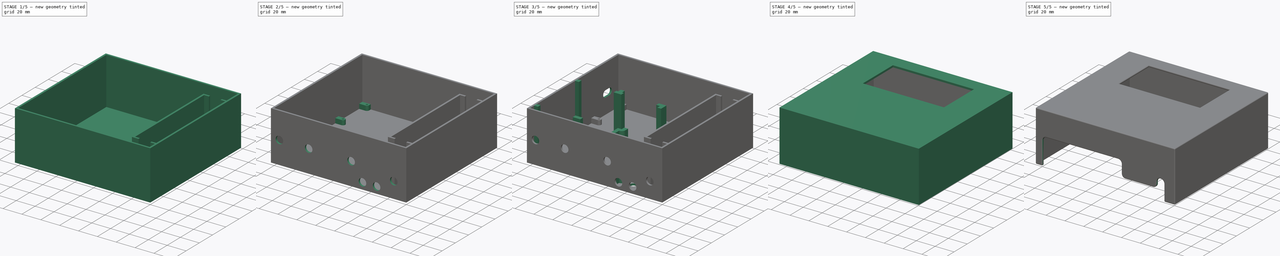
[diagram: build sequence overview — one tinted view per stage of 5, left to right]
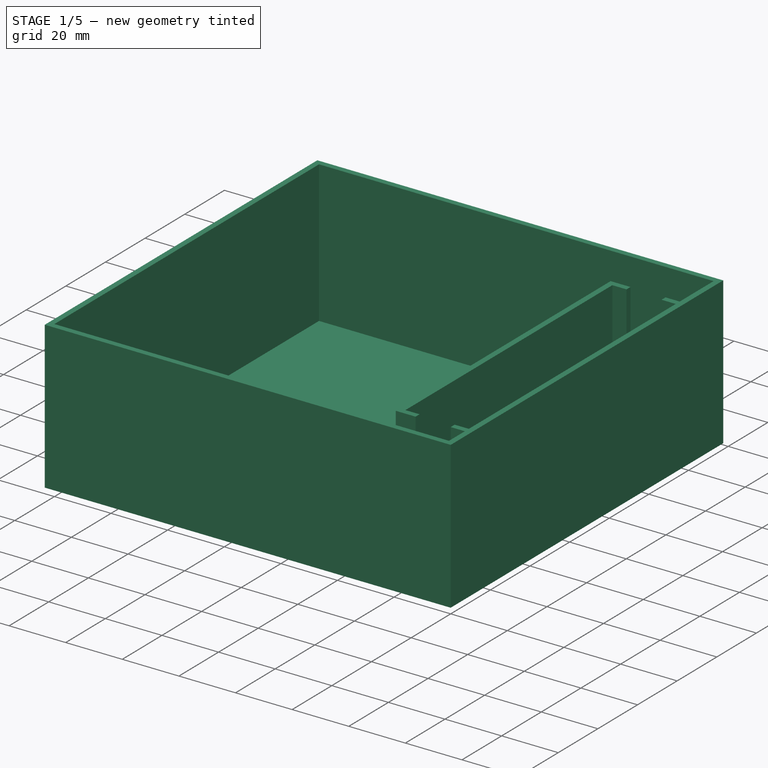
[diagram: stage 1 of 5 — iso view after this stage's code; geometry added in this stage tinted green]
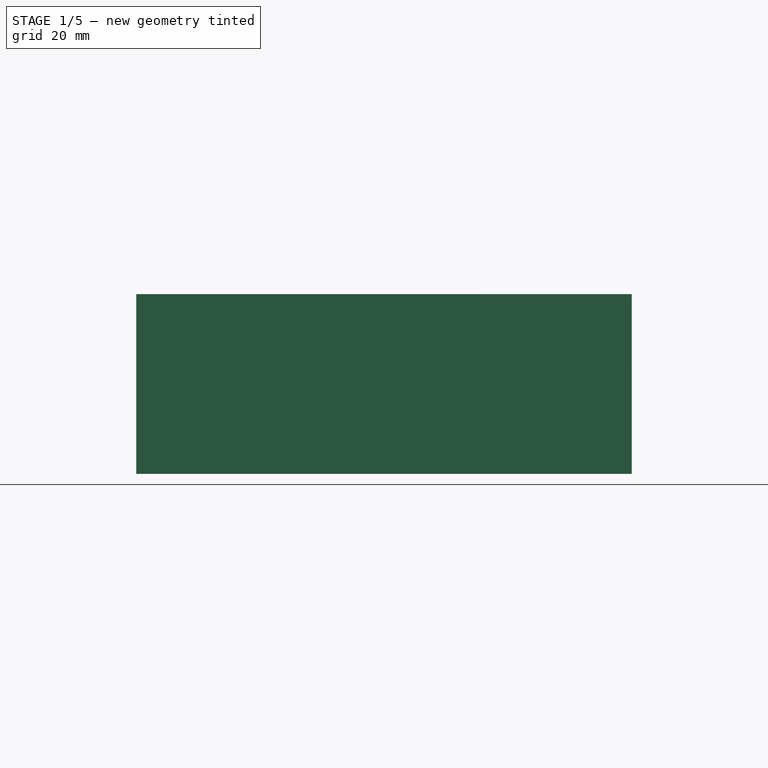
[diagram: stage 1 of 5 — front view after this stage's code; geometry added in this stage tinted green]
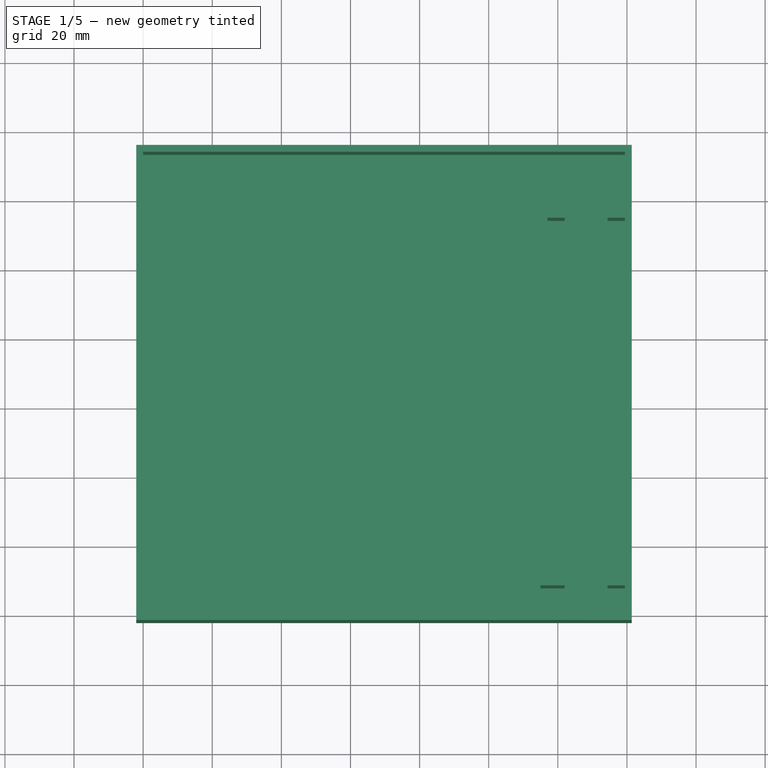
[diagram: stage 1 of 5 — top view after this stage's code; geometry added in this stage tinted green]
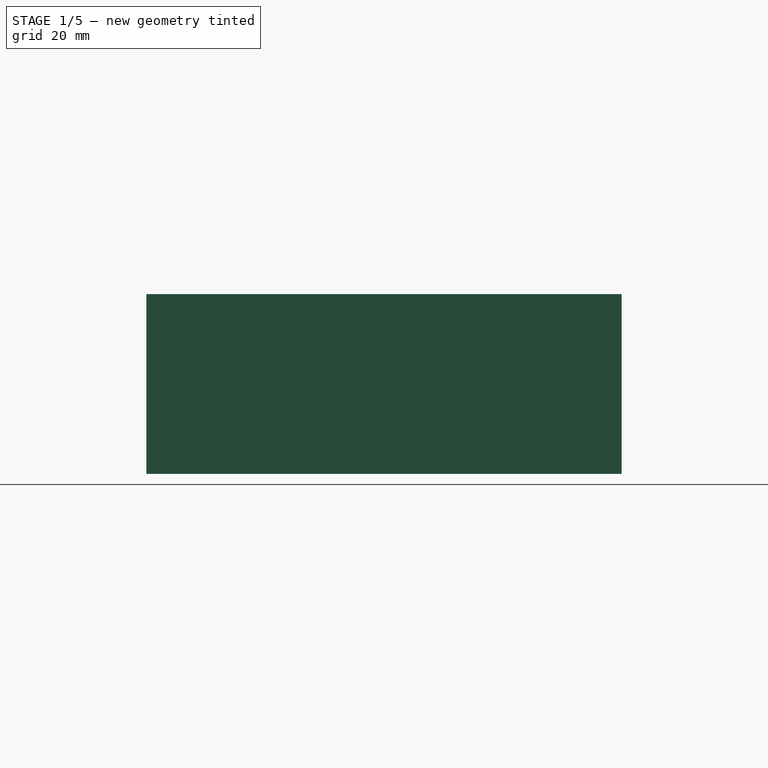
[diagram: stage 1 of 5 — right view after this stage's code; geometry added in this stage tinted green]
FCSTD DOCUMENT  (FreeCAD 0.22R38459 (Git))
Label: solar_panel_distribution
License: All rights reserved
LicenseURL: https://en.wikipedia.org/wiki/All_rights_reserved
objects: Sketcher::SketchObject×11, PartDesign::Pad×8, PartDesign::Pocket×6, PartDesign::SubShapeBinder×3, PartDesign::Fillet×2, PartDesign::Body×2, App::Part×2, Spreadsheet::Sheet×1, PartDesign::ShapeBinder×1
note: 76 computed .brp shape members not serialized (recipe doc carries the construction recipe); baked Part::Feature solids carry a one-line shape summary decoded from their .brp

FEATURE [Sketcher::SketchObject] Sketch  label="components"
  ArcFitTolerance = 0
  AttachmentSupport = -> [XY_Plane001]
  FullyConstrained = true
  MakeInternals = false
  MapMode = 5
  expr: .Constraints.shunt_x = 22 + 2 * <<config>>.slack
  expr: Constraints[116] = (.Constraints.rele_y - .Constraints.clema_y) / 2
  expr: Constraints[40] = 104 + 2 * <<config>>.slack
  expr: Constraints[49] = <<config>>.thickness
  expr: Constraints[50] = <<config>>.thickness
  expr: Constraints[51] = <<config>>.thickness
  expr: Constraints[52] = <<config>>.thickness
  expr: Constraints[53] = <<config>>.cable_space
  expr: Constraints[54] = <<config>>.cable_space
  expr: Constraints[72] = <<config>>.screen_margin
  expr: Constraints[73] = <<config>>.screen_margin
  expr: Constraints[83] = <<config>>.thickness
  expr: Constraints[84] = <<config>>.thickness
  expr: Constraints[90] = <<config>>.thickness
  sketch-geometry (53):
    g0: LineSegment [constr] StartX=139.4 StartY=0 StartZ=0 EndX=139.4 EndY=133.5 EndZ=0
    g1: LineSegment StartX=139.4 StartY=133.5 StartZ=0 EndX=0 EndY=133.5 EndZ=0
    g2: LineSegment StartX=0 StartY=133.5 StartZ=0 EndX=0 EndY=0 EndZ=0
    g3: LineSegment StartX=0 StartY=68 StartZ=0 EndX=45 EndY=68 EndZ=0
    g4: LineSegment StartX=45 StartY=68 StartZ=0 EndX=45 EndY=10 EndZ=0
    g5: LineSegment StartX=45 StartY=10 StartZ=0 EndX=0 EndY=10 EndZ=0
    g6: LineSegment [constr] StartX=0 StartY=10 StartZ=0 EndX=0 EndY=68 EndZ=0
    g7: LineSegment StartX=45 StartY=10 StartZ=0 EndX=90 EndY=10 EndZ=0
    g8: LineSegment StartX=90 StartY=10 StartZ=0 EndX=90 EndY=68 EndZ=0
    g9: LineSegment StartX=90 StartY=68 StartZ=0 EndX=45 EndY=68 EndZ=0
    g10: LineSegment [constr] StartX=45 StartY=68 StartZ=0 EndX=45 EndY=10 EndZ=0
    g11: LineSegment [constr] StartX=90 StartY=24.5 StartZ=0 EndX=115 EndY=24.5 EndZ=0
    g12: LineSegment [constr] StartX=115 StartY=24.5 StartZ=0 EndX=115 EndY=53.5 EndZ=0
    g13: LineSegment [constr] StartX=115 StartY=53.5 StartZ=0 EndX=90 EndY=53.5 EndZ=0
    g14: LineSegment [constr] StartX=90 StartY=53.5 StartZ=0 EndX=90 EndY=24.5 EndZ=0
    g15: LineSegment [constr] StartX=117 StartY=114.4 StartZ=0 EndX=139.4 EndY=114.4 EndZ=0
    g16: LineSegment [constr] StartX=139.4 StartY=114.4 StartZ=0 EndX=139.4 EndY=10 EndZ=0
    g17: LineSegment [constr] StartX=139.4 StartY=10 StartZ=0 EndX=117 EndY=10 EndZ=0
    g18: LineSegment StartX=117 StartY=10 StartZ=0 EndX=117 EndY=114.4 EndZ=0
    g19: LineSegment StartX=141.4 StartY=135.5 StartZ=0 EndX=-2 EndY=135.5 EndZ=0
    g20: LineSegment StartX=-2 StartY=135.5 StartZ=0 EndX=-2 EndY=-2 EndZ=0
    g21: LineSegment StartX=-2 StartY=-2 StartZ=0 EndX=141.4 EndY=-2 EndZ=0
    g22: LineSegment StartX=141.4 StartY=-2 StartZ=0 EndX=141.4 EndY=135.5 EndZ=0
    g23: LineSegment StartX=26.7 StartY=123.5 StartZ=0 EndX=26.7 EndY=78 EndZ=0
    g24: LineSegment StartX=26.7 StartY=78 StartZ=0 EndX=112.7 EndY=78 EndZ=0
    g25: LineSegment StartX=112.7 StartY=78 StartZ=0 EndX=112.7 EndY=123.5 EndZ=0
    g26: LineSegment StartX=112.7 StartY=123.5 StartZ=0 EndX=26.7 EndY=123.5 EndZ=0
    g27: LineSegment StartX=139.4 StartY=0 StartZ=0 EndX=0 EndY=0 EndZ=0
    g28: LineSegment StartX=117 StartY=114.4 StartZ=0 EndX=122 EndY=114.4 EndZ=0
    g29: LineSegment StartX=122 StartY=114.4 StartZ=0 EndX=122 EndY=116.4 EndZ=0
    g30: LineSegment StartX=122 StartY=116.4 StartZ=0 EndX=115 EndY=116.4 EndZ=0
    g31: LineSegment StartX=115 StartY=116.4 StartZ=0 EndX=115 EndY=8 EndZ=0
    g32: LineSegment StartX=115 StartY=8 StartZ=0 EndX=122 EndY=8 EndZ=0
    g33: LineSegment StartX=122 StartY=8 StartZ=0 EndX=122 EndY=10 EndZ=0
    g34: LineSegment StartX=122 StartY=10 StartZ=0 EndX=117 EndY=10 EndZ=0
    g35: LineSegment StartX=139.4 StartY=114.4 StartZ=0 EndX=134.4 EndY=114.4 EndZ=0
    g36: LineSegment StartX=134.4 StartY=114.4 StartZ=0 EndX=134.4 EndY=116.4 EndZ=0
    g37: LineSegment StartX=134.4 StartY=116.4 StartZ=0 EndX=139.4 EndY=116.4 EndZ=0
    g38: LineSegment StartX=139.4 StartY=8 StartZ=0 EndX=134.4 EndY=8 EndZ=0
    g39: LineSegment StartX=134.4 StartY=8 StartZ=0 EndX=134.4 EndY=10 EndZ=0
    g40: LineSegment StartX=134.4 StartY=10 StartZ=0 EndX=139.4 EndY=10 EndZ=0
    g41: LineSegment StartX=134.4 StartY=10 StartZ=0 EndX=139.4 EndY=10 EndZ=0
    g42: LineSegment [constr] StartX=26.7 StartY=123.5 StartZ=0 EndX=0 EndY=123.5 EndZ=0
    g43: LineSegment [constr] StartX=112.7 StartY=123.5 StartZ=0 EndX=139.4 EndY=123.5 EndZ=0
    g44: LineSegment StartX=139.4 StartY=8 StartZ=0 EndX=139.4 EndY=10 EndZ=0
    g45: LineSegment StartX=139.4 StartY=0 StartZ=0 EndX=139.4 EndY=8 EndZ=0
    g46: LineSegment StartX=139.4 StartY=10 StartZ=0 EndX=139.4 EndY=114.4 EndZ=0
    g47: LineSegment StartX=139.4 StartY=114.4 StartZ=0 EndX=139.4 EndY=116.4 EndZ=0
    g48: LineSegment StartX=139.4 StartY=116.4 StartZ=0 EndX=139.4 EndY=133.5 EndZ=0
    g49: Circle CenterX=6.5 CenterY=131.1 CenterZ=0 NormalX=0 NormalY=0 NormalZ=1 AngleXU=0 Radius=2.4
    g50: Circle CenterX=6.5 CenterY=94.9 CenterZ=0 NormalX=0 NormalY=0 NormalZ=1 AngleXU=0 Radius=2.4
    g51: Circle CenterX=62.4 CenterY=131.1 CenterZ=0 NormalX=0 NormalY=0 NormalZ=1 AngleXU=0 Radius=2.4
    g52: Circle CenterX=62.4 CenterY=94.9 CenterZ=0 NormalX=0 NormalY=0 NormalZ=1 AngleXU=0 Radius=2.4
  constraints (148):
    c: Coincident(g0,g1)
    c: Coincident(g1,g2)
    c: Horizontal(g1)
    c: Vertical(g0)
    c: Vertical(g2)
    c: Coincident(g3,g4)
    c: Coincident(g4,g5)
    c: Coincident(g5,g6)
    c: Coincident(g6,g3)
    c: Horizontal(g3)
    c: Horizontal(g5)
    c: Vertical(g4)
    c: DistanceX(g5,g5) = 45  'rele_x'
    c: DistanceY(g4,g4) = 58  'rele_y'
    c: Coincident(g7,g8)
    c: Coincident(g8,g9)
    c: Coincident(g9,g10)
    c: Coincident(g10,g7)
    c: Horizontal(g7)
    c: Horizontal(g9)
    c: Vertical(g8)
    c: Vertical(g10)
    c: Coincident(g7,g4)
    c: Equal(g9,g3)
    c: Equal(g4,g10)
    c: Coincident(g11,g12)
    c: Coincident(g12,g13)
    c: Coincident(g13,g14)
    c: Coincident(g14,g11)
    c: Horizontal(g11)
    c: Horizontal(g13)
    c: Vertical(g12)
    c: Coincident(g15,g16)
    c: Coincident(g16,g17)
    c: Coincident(g17,g18)
    c: Coincident(g18,g15)
    c: Horizontal(g15)
    c: Horizontal(g17)
    c: Vertical(g18)
    c: DistanceX(g15,g15) = 22.4  'shunt_x'
    c: DistanceY(g16,g16) = 104.4
    c: Coincident(g19,g20)
    c: Coincident(g20,g21)
    c: Coincident(g21,g22)
    c: Coincident(g22,g19)
    c: Horizontal(g19)
    c: Horizontal(g21)
    c: Vertical(g20)
    c: Vertical(g22)
    c: DistanceY(g20,g2) = 2
    c: DistanceY(g1,g19) = 2
    c: DistanceX(g20,g2) = 2
    c: DistanceX(g0,g21) = 2
    c: DistanceY(g0,g16) = 10
    c: DistanceY(g2,g5) = 10
    c: Coincident(g23,g24)
    c: Coincident(g24,g25)
    c: Coincident(g25,g26)
    c: Coincident(g26,g23)
    c: Vertical(g23)
    c: Vertical(g25)
    c: Horizontal(g24)
    c: Horizontal(g26)
    c: DistanceY(g23,g23) = 45.5  'screen_y'
    c: DistanceX(g26,g26) = 86  'screen_x'
    c: Coincident(g27,g2)
    c: Coincident(g27,g0)
    c: Horizontal(g27)
    c: Coincident(g-1,g2)
    c: Tangent(g8,g14)
    c: DistanceX(g13,g13) = 25
    c: Tangent(g2,g6)
    c: Distance(g23,g1) = 10
    c: Distance(g8,g24) = 10
    c: Coincident(g15,g28)
    c: PointOnObject(g28,g15)
    c: Coincident(g28,g29)
    c: Vertical(g29)
    c: Coincident(g29,g30)
    c: Horizontal(g30)
    c: Coincident(g30,g31)
    c: Coincident(g31,g32)
    c: Horizontal(g32)
    c: Distance(g31,g18) = 2
    c: DistanceY(g29,g29) = 2
    c: Coincident(g32,g33)
    c: Vertical(g33)
    c: Coincident(g33,g34)
    c: Coincident(g34,g17)
    c: Horizontal(g34)
    c: DistanceY(g33,g33) = 2
    c: DistanceX(g34,g34) = 5
    c: Equal(g34,g28)
    c: Tangent(g31,g12)
    c: Coincident(g15,g35)
    c: Horizontal(g35)
    c: Coincident(g35,g36)
    c: Vertical(g36)
    c: Coincident(g36,g37)
    c: Horizontal(g37)
    c: Horizontal(g38)
    c: Coincident(g38,g39)
    c: PointOnObject(g39,g17)
    c: Vertical(g39)
    c: Coincident(g39,g40)
    c: Coincident(g40,g16)
    c: Equal(g33,g39)
    c: Coincident(g41,g39)
    c: Coincident(g41,g16)
    c: Equal(g40,g34)
    c: PointOnObject(g37,g0)
    c: PointOnObject(g38,g0)
    c: Equal(g36,g29)
    c: Equal(g28,g35)
    c: Tangent(g16,g0)
    c: Distance(g11,g13) = 29  'clema_y'
    c: DistanceY(g7,g11) = 14.5
    c: DistanceX(g27,g27) = 139.4  'inside_x'
    c: Coincident(g42,g23)
    c: PointOnObject(g42,g2)
    c: Horizontal(g42)
    c: Coincident(g43,g25)
    c: PointOnObject(g43,g0)
    c: Horizontal(g43)
    c: Equal(g42,g43)
    c: Coincident(g44,g38)
    c: Coincident(g44,g16)
    c: Coincident(g45,g0)
    c: Coincident(g45,g38)
    c: Coincident(g46,g16)
    c: Coincident(g46,g15)
    c: Coincident(g47,g15)
    c: Coincident(g47,g37)
    c: Coincident(g48,g0)
    c: Coincident(g37,g48)
    c: Distance(g49,g2) = 6.5
    c: Distance(g49,g1) = 2.4
    c: Equal(g49,g51)
    c: Equal(g49,g52)
    c: Equal(g49,g50)
    c: Horizontal(g49,g51)
    c: Vertical(g51,g52)
    c: Horizontal(g50,g52)
    c: Vertical(g49,g50)
    c: DistanceX(g50,g52) = 55.9
    c: DistanceY(g52,g51) = 36.2
    c: Tangent(g49,g1)
    c: Diameter(g49) = 4.8
FEATURE [Spreadsheet::Sheet] Spreadsheet  label="config"
  cells = A2='thickness; B2(thickness)=2; A3='cable_space; B3(cable_space)=10; A4='screen_margin; B4(screen_margin)=10; A5='inside_z; B5(inside_z)=50; A6='slack; B6(slack)=0.2
FEATURE [PartDesign::Pad] Pad  label="base"
  Direction = (0,0,1)
  Length = 2
  Length2 = 10
  Profile = -> Sketch [Edge31,Edge32,Edge33,Edge30]
  ReferenceAxis = -> Sketch [N_Axis]
  Refine = true
  Reversed = true
  Suppressed = false
  Type = 0
  expr: Length = <<config>>.thickness
FEATURE [PartDesign::Pad] Pad001  label="shunt_walls"
  BaseFeature = -> Pad
  Direction = (0,0,1)
  Length = 50
  Length2 = 10
  Profile = -> Sketch [Edge8,Edge5,Edge6,Edge7,Edge28,Edge27,Edge29,Edge22,Edge26,Edge11,Edge12,Edge14,Edge13,Edge24,Edge23,Edge25]
  ReferenceAxis = -> Sketch [N_Axis]
  Refine = true
  Suppressed = false
  Type = 0
  expr: Length = <<config>>.inside_z
FEATURE [PartDesign::Pad] Pad002  label="inside_walls"
  BaseFeature = -> Pad001
  Direction = (0,0,1)
  Length = 50
  Length2 = 10
  Profile = -> Sketch [Edge10,Edge33,Edge8,Edge4,Edge11,Edge15,Edge1,Edge30,Edge31,Edge2,Edge32,Edge3]
  ReferenceAxis = -> Sketch [N_Axis]
  Refine = true
  Suppressed = false
  Type = 0
  expr: Length = <<config>>.inside_z
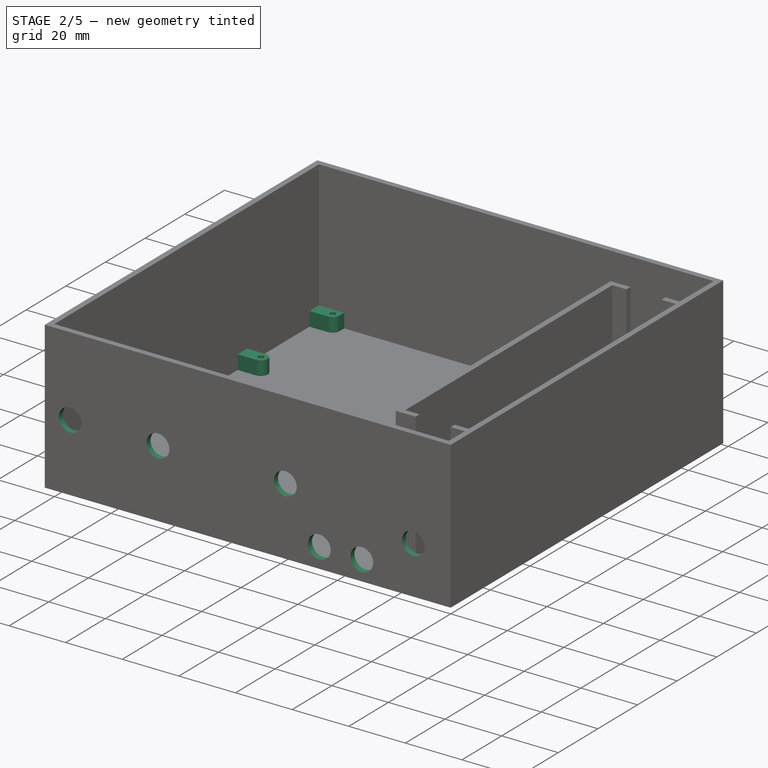
[diagram: stage 2 of 5 — iso view after this stage's code; geometry added in this stage tinted green]
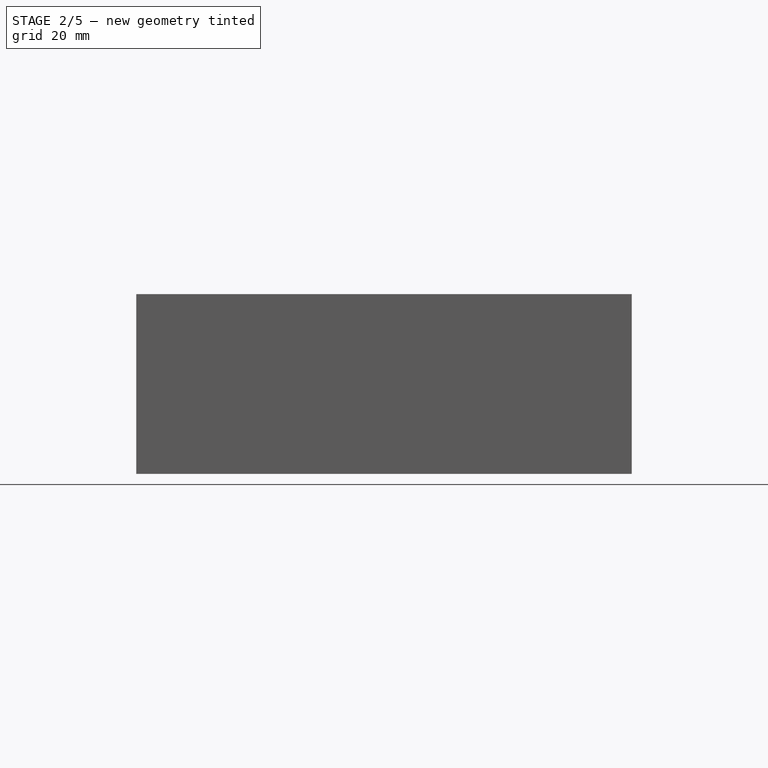
[diagram: stage 2 of 5 — front view after this stage's code; geometry added in this stage tinted green]
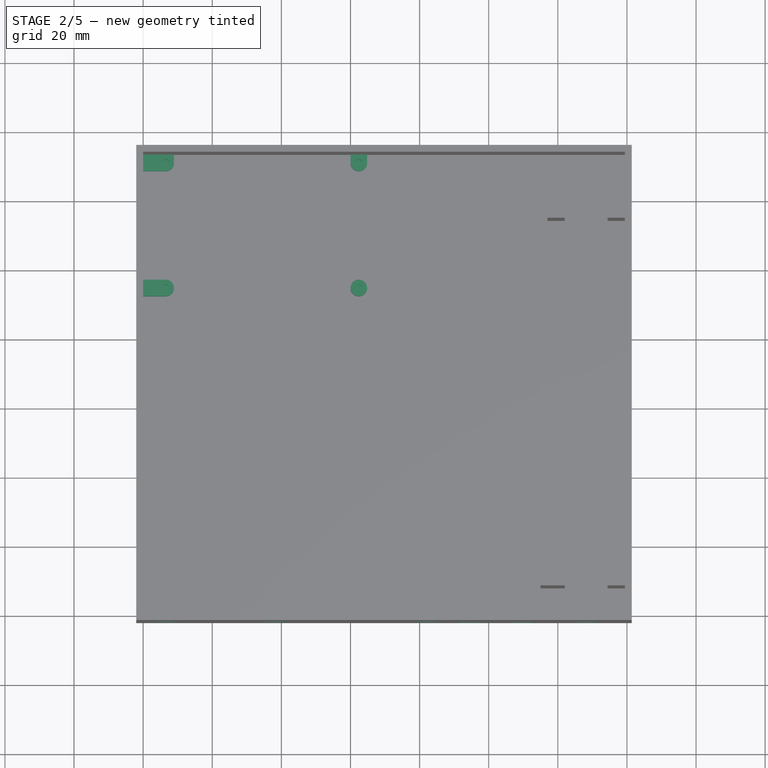
[diagram: stage 2 of 5 — top view after this stage's code; geometry added in this stage tinted green]
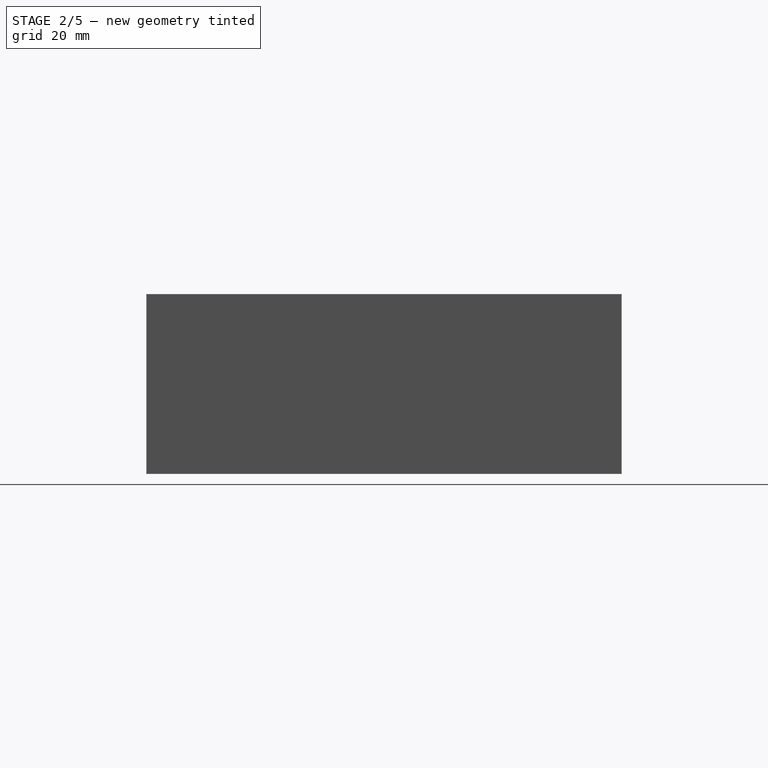
[diagram: stage 2 of 5 — right view after this stage's code; geometry added in this stage tinted green]
FEATURE [Sketcher::SketchObject] Sketch002  label="cables_sketch"
  ArcFitTolerance = 1e-06
  AttachmentSupport = -> [Pad002]
  ExternalGeometry = -> [Sketch]
  FullyConstrained = true
  MakeInternals = false
  MapMode = 5
  Placement = pos=(0,-2,0) rot=(1,0,0;1.5708rad)
  expr: Constraints[10] = .Constraints.clema_y
  expr: Constraints[13] = .Constraints.clema_cable_x
  expr: Constraints[14] = .Constraints.cable_diameter
  expr: Constraints[15] = .Constraints.cable_diameter
  expr: Constraints[16] = .Constraints.cable_diameter
  expr: Constraints[1] = .Constraints.rele_cable_z
  expr: Constraints[2] = .Constraints.rele_cable_z
  expr: Constraints[4] = .Constraints.rele_cable_x
  expr: Constraints[5] = .Constraints.rele_cable_x
  expr: Constraints[7] = .Constraints.cable_diameter
  expr: Constraints[8] = .Constraints.cable_diameter
  sketch-geometry (9):
    g0: Circle CenterX=7 CenterY=22 CenterZ=0 NormalX=0 NormalY=0 NormalZ=1 AngleXU=0 Radius=4
    g1: Circle CenterX=38 CenterY=22 CenterZ=0 NormalX=0 NormalY=0 NormalZ=1 AngleXU=0 Radius=4
    g2: Circle CenterX=83 CenterY=22 CenterZ=0 NormalX=0 NormalY=0 NormalZ=1 AngleXU=0 Radius=4
    g3: Circle CenterX=95 CenterY=5 CenterZ=0 NormalX=0 NormalY=0 NormalZ=1 AngleXU=0 Radius=4
    g4: Circle CenterX=110 CenterY=5 CenterZ=0 NormalX=0 NormalY=0 NormalZ=1 AngleXU=0 Radius=4
    g5: Circle CenterX=128.2 CenterY=15 CenterZ=0 NormalX=0 NormalY=0 NormalZ=1 AngleXU=0 Radius=4
    g6: LineSegment [constr] StartX=128.2 StartY=15 StartZ=0 EndX=128.2 EndY=0 EndZ=0
    g7: LineSegment [constr] StartX=117 StartY=1.43e-14 StartZ=0 EndX=128.2 EndY=0 EndZ=0
    g8: LineSegment [constr] StartX=128.2 StartY=0 StartZ=0 EndX=139.4 EndY=1.43e-14 EndZ=0
  constraints (25):
    c: Distance(g0,g-1) = 22  'rele_cable_z'
    c: Distance(g1,g-1) = 22
    c: Distance(g2,g-1) = 22
    c: DistanceX(g-1,g0) = 7  'rele_cable_x'
    c: DistanceX(g2,g-4) = 7
    c: DistanceX(g1,g-4) = 7
    c: Diameter(g0) = 8  'cable_diameter'
    c: Diameter(g1) = 8
    c: Diameter(g2) = 8
    c: Distance(g3,g-1) = 5  'clema_y'
    c: Distance(g4,g-1) = 5
    c: Distance(g5,g-1) = 15
    c: DistanceX(g-4,g3) = 5  'clema_cable_x'
    c: DistanceX(g4,g-7) = 5
    c: Diameter(g3) = 8
    c: Diameter(g4) = 8
    c: Diameter(g5) = 8
    c: Coincident(g6,g5)
    c: PointOnObject(g6,g-1)
    c: Vertical(g6)
    c: Coincident(g7,g-5)
    c: Coincident(g7,g6)
    c: Coincident(g8,g6)
    c: Coincident(g8,g-6)
    c: Equal(g7,g8)
FEATURE [PartDesign::Pocket] Pocket  label="cables_holes_inside"
  BaseFeature = -> Pad002
  Direction = (0,1,-2e-16)
  Length = 5
  Length2 = 5
  Profile = -> Sketch002
  ReferenceAxis = -> Sketch002 [N_Axis]
  Refine = true
  Suppressed = false
  Type = 2
FEATURE [Sketcher::SketchObject] Sketch004  label="PCB_sketch"
  ArcFitTolerance = 1e-06
  AttachmentSupport = -> [Pocket]
  ExternalGeometry = -> [Sketch,Pocket]
  FullyConstrained = true
  MakeInternals = false
  MapMode = 5
  sketch-geometry (18):
    g0: LineSegment StartX=0 StartY=133.5 StartZ=0 EndX=8.9 EndY=133.5 EndZ=0
    g1: LineSegment StartX=8.9 StartY=133.5 StartZ=0 EndX=8.9 EndY=131.1 EndZ=0
    g2: LineSegment StartX=6.5 StartY=128.7 StartZ=0 EndX=0 EndY=128.7 EndZ=0
    g3: LineSegment StartX=0 StartY=133.5 StartZ=0 EndX=0 EndY=128.7 EndZ=0
    g4: ArcOfCircle CenterX=6.5 CenterY=131.1 CenterZ=0 NormalX=0 NormalY=0 NormalZ=1 AngleXU=0 Radius=2.4 StartAngle=4.71239 EndAngle=6.28319
    g5: LineSegment StartX=6.5 StartY=97.3 StartZ=0 EndX=0 EndY=97.3 EndZ=0
    g6: LineSegment StartX=6.5 StartY=92.5 StartZ=0 EndX=0 EndY=92.5 EndZ=0
    g7: LineSegment StartX=0 StartY=92.5 StartZ=0 EndX=0 EndY=97.3 EndZ=0
    g8: ArcOfCircle CenterX=6.5 CenterY=94.9 CenterZ=0 NormalX=0 NormalY=0 NormalZ=1 AngleXU=0 Radius=2.4 StartAngle=4.71239 EndAngle=7.85398
    g9: LineSegment StartX=60 StartY=131.1 StartZ=0 EndX=60 EndY=133.5 EndZ=0
    g10: LineSegment StartX=60 StartY=133.5 StartZ=0 EndX=64.8 EndY=133.5 EndZ=0
    g11: LineSegment StartX=64.8 StartY=131.1 StartZ=0 EndX=64.8 EndY=133.5 EndZ=0
    g12: ArcOfCircle CenterX=62.4 CenterY=131.1 CenterZ=0 NormalX=0 NormalY=0 NormalZ=1 AngleXU=0 Radius=2.4 StartAngle=3.14159 EndAngle=6.28319
    g13: Circle CenterX=62.4 CenterY=94.9 CenterZ=0 NormalX=0 NormalY=0 NormalZ=1 AngleXU=0 Radius=2.4
    g14: GeomPoint X=6.5 Y=94.9 Z=0
    g15: GeomPoint X=62.4 Y=94.9 Z=0
    g16: GeomPoint X=62.4 Y=131.1 Z=0
    g17: GeomPoint X=6.5 Y=131.1 Z=0
  constraints (44):
    c: Coincident(g0,g1)
    c: PointOnObject(g1,g-8)
    c: Horizontal(g2)
    c: Vertical(g1)
    c: Coincident(g3,g0)
    c: Coincident(g3,g2)
    c: Vertical(g3)
    c: Coincident(g4,g-8)
    c: Coincident(g4,g1)
    c: Coincident(g4,g2)
    c: Horizontal(g4,g1)
    c: Vertical(g2,g4)
    c: Horizontal(g0)
    c: Coincident(g0,g-5)
    c: PointOnObject(g5,g-6)
    c: PointOnObject(g5,g-5)
    c: Horizontal(g5)
    c: PointOnObject(g6,g-6)
    c: PointOnObject(g6,g-5)
    c: Horizontal(g6)
    c: Coincident(g6,g7)
    c: Coincident(g7,g5)
    c: Vertical(g5,g-6)
    c: Vertical(g-6,g6)
    c: Coincident(g5,g8)
    c: Coincident(g6,g8)
    c: Tangent(g-6,g8)
    c: Coincident(g10,g9)
    c: PointOnObject(g11,g-3)
    c: Coincident(g11,g10)
    c: Vertical(g11)
    c: Tangent(g10,g-4)
    c: Horizontal(g9,g-3)
    c: Horizontal(g11,g-3)
    c: Vertical(g9)
    c: Coincident(g12,g-3)
    c: Coincident(g12,g11)
    c: Coincident(g13,g-7)
    c: Equal(g13,g-7)
    c: Coincident(g12,g9)
    c: Coincident(g14,g8)
    c: Coincident(g15,g13)
    c: Coincident(g16,g12)
    c: Coincident(g17,g4)
FEATURE [PartDesign::Pad] Pad005  label="PCB_holders"
  BaseFeature = -> Pocket
  Direction = (0,0,1)
  Length = 5
  Length2 = 10
  Profile = -> Sketch004 [Edge4,Edge5,Edge1,Edge2,Edge3,Edge8,Edge7,Edge6,Edge9,Edge14,Edge13,Edge10,Edge11,Edge12]
  ReferenceAxis = -> Sketch004 [N_Axis]
  Refine = true
  Suppressed = false
  Type = 0
FEATURE [Sketcher::SketchObject] Sketch005
  ArcFitTolerance = 1e-06
  AttachmentSupport = -> [Pad005]
  ExternalGeometry = -> [Sketch004]
  FullyConstrained = true
  MakeInternals = false
  MapMode = 5
  Placement = pos=(0,0,5) rot=(0,0,1;0rad)
  sketch-geometry (8):
    g0: GeomPoint X=6.5 Y=131.1 Z=0
    g1: GeomPoint X=6.5 Y=94.9 Z=0
    g2: GeomPoint X=62.4 Y=94.9 Z=0
    g3: GeomPoint X=62.4 Y=131.1 Z=0
    g4: Circle CenterX=6.5 CenterY=131.1 CenterZ=0 NormalX=0 NormalY=0 NormalZ=1 AngleXU=0 Radius=1
    g5: Circle CenterX=6.5 CenterY=94.9 CenterZ=0 NormalX=0 NormalY=0 NormalZ=1 AngleXU=0 Radius=1
    g6: Circle CenterX=62.4 CenterY=131.1 CenterZ=0 NormalX=0 NormalY=0 NormalZ=1 AngleXU=0 Radius=1
    g7: Circle CenterX=62.4 CenterY=94.9 CenterZ=0 NormalX=0 NormalY=0 NormalZ=1 AngleXU=0 Radius=1
  constraints (12):
    c: Coincident(g0,g-3)
    c: Coincident(g1,g-4)
    c: Coincident(g2,g-5)
    c: Coincident(g3,g-6)
    c: Diameter(g4) = 2
    c: Coincident(g4,g0)
    c: Coincident(g5,g1)
    c: Coincident(g6,g3)
    c: Coincident(g7,g2)
    c: Equal(g4,g5)
    c: Equal(g7,g4)
    c: Equal(g6,g4)
FEATURE [PartDesign::Pocket] Pocket002  label="pcb_scrulls"
  BaseFeature = -> Pad005
  Direction = (0,0,-1)
  Length = 4
  Length2 = 5
  Profile = -> Sketch005 [Edge2,Edge1,Edge3,Edge4]
  ReferenceAxis = -> Sketch005 [N_Axis]
  Refine = true
  Suppressed = false
  Type = 0
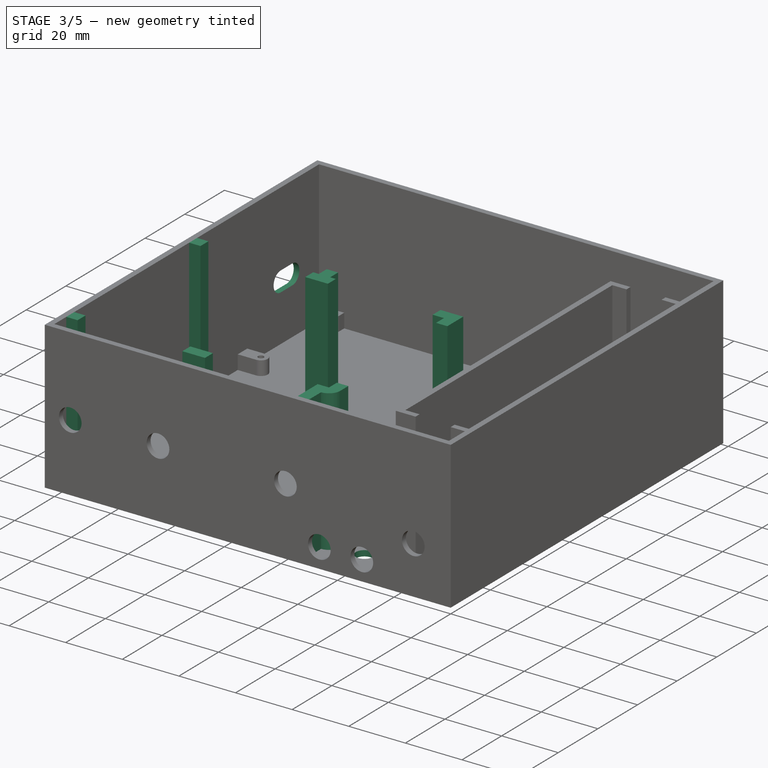
[diagram: stage 3 of 5 — iso view after this stage's code; geometry added in this stage tinted green]
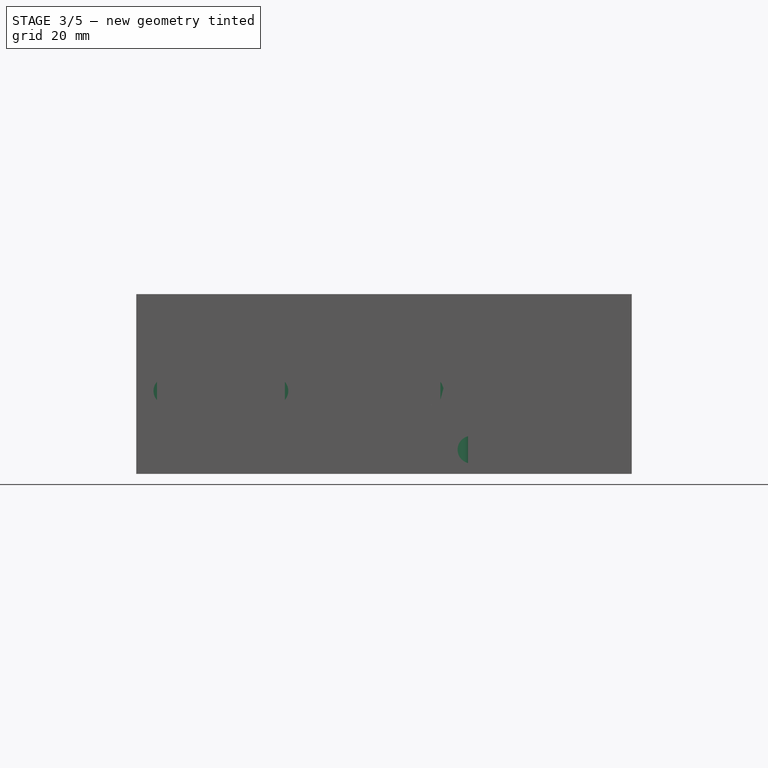
[diagram: stage 3 of 5 — front view after this stage's code; geometry added in this stage tinted green]
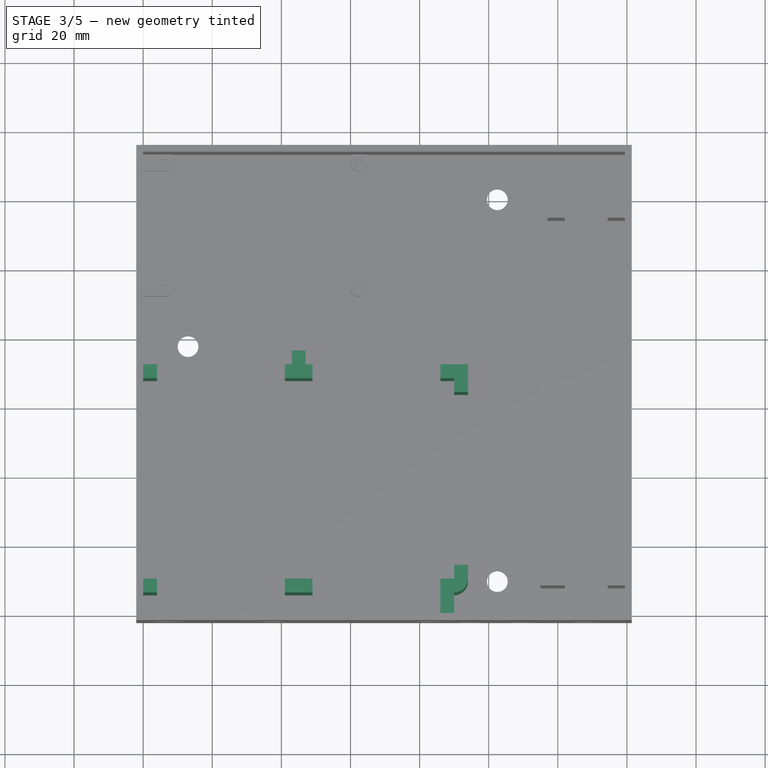
[diagram: stage 3 of 5 — top view after this stage's code; geometry added in this stage tinted green]
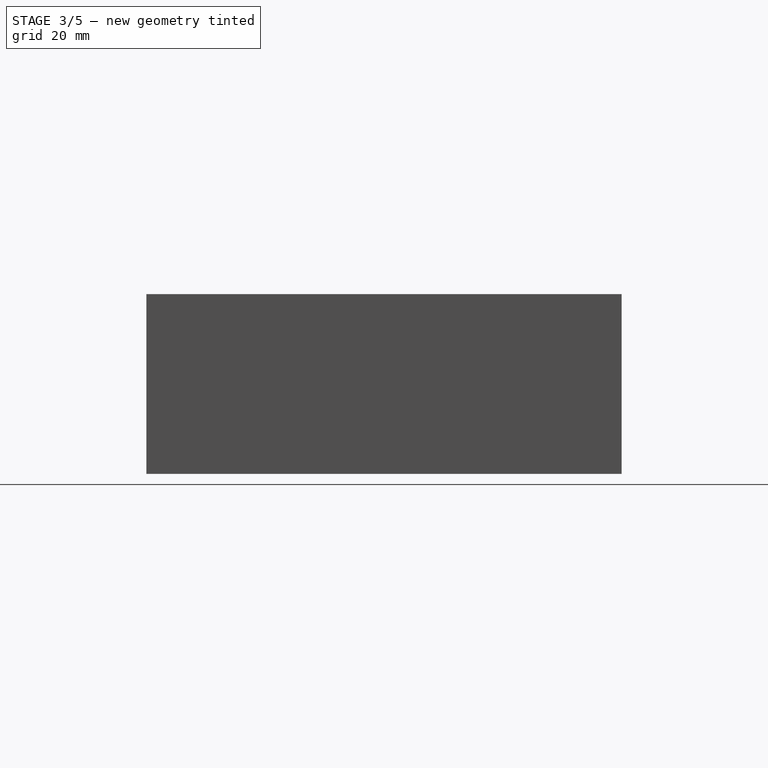
[diagram: stage 3 of 5 — right view after this stage's code; geometry added in this stage tinted green]
FEATURE [Sketcher::SketchObject] Sketch006
  ArcFitTolerance = 1e-06
  AttachmentSupport = -> [Pocket002]
  ExternalGeometry = -> [Sketch005,Sketch]
  FullyConstrained = true
  MakeInternals = false
  MapMode = 5
  Placement = pos=(-2,0,0) rot=(0.57735,-0.57735,-0.57735;2.0944rad)
  sketch-geometry (11):
    g0: LineSegment [constr] StartX=-117.1 StartY=20 StartZ=0 EndX=-117.1 EndY=0 EndZ=0
    g1: ArcOfCircle CenterX=-120.1 CenterY=20 CenterZ=0 NormalX=0 NormalY=0 NormalZ=1 AngleXU=0 Radius=3.5 StartAngle=1.5708 EndAngle=4.71239
    g2: ArcOfCircle CenterX=-114.1 CenterY=20 CenterZ=0 NormalX=0 NormalY=0 NormalZ=1 AngleXU=0 Radius=3.5 StartAngle=4.71239 EndAngle=7.85398
    g3: LineSegment StartX=-120.1 StartY=23.5 StartZ=0 EndX=-114.1 EndY=23.5 EndZ=0
    g4: LineSegment StartX=-120.1 StartY=16.5 StartZ=0 EndX=-114.1 EndY=16.5 EndZ=0
    g5: LineSegment [constr] StartX=-120.1 StartY=20 StartZ=0 EndX=-117.1 EndY=20 EndZ=0
    g6: LineSegment [constr] StartX=-114.1 StartY=20 StartZ=0 EndX=-117.1 EndY=20 EndZ=0
    g7: LineSegment [constr] StartX=-110.6 StartY=23.5 StartZ=0 EndX=-123.6 EndY=23.5 EndZ=0
    g8: LineSegment [constr] StartX=-123.6 StartY=23.5 StartZ=0 EndX=-123.6 EndY=16.5 EndZ=0
    g9: LineSegment [constr] StartX=-123.6 StartY=16.5 StartZ=0 EndX=-110.6 EndY=16.5 EndZ=0
    g10: LineSegment [constr] StartX=-110.6 StartY=16.5 StartZ=0 EndX=-110.6 EndY=23.5 EndZ=0
  constraints (28):
    c: Vertical(g0)
    c: PointOnObject(g0,g-1)
    c: Tangent(g1,g3) = 1.5708
    c: Tangent(g1,g4) = -1.5708
    c: Tangent(g2,g3) = 1.5708
    c: Tangent(g2,g4) = -1.5708
    c: Equal(g1,g2)
    c: Horizontal(g4)
    c: Coincident(g5,g1)
    c: Coincident(g5,g0)
    c: Coincident(g6,g2)
    c: Coincident(g6,g0)
    c: Horizontal(g6)
    c: Equal(g5,g6)
    c: Distance(g4,g3) = 7
    c: Coincident(g7,g8)
    c: Coincident(g8,g9)
    c: Coincident(g9,g10)
    c: Coincident(g10,g7)
    c: Vertical(g8)
    c: Vertical(g10)
    c: Tangent(g3,g7)
    c: Tangent(g9,g4)
    c: Tangent(g8,g1)
    c: Tangent(g10,g2)
    c: Distance(g10,g8) = 13
    c: Distance(g-5,g0) = 16.4
    c: DistanceY(g0,g0) = 20
FEATURE [Sketcher::SketchObject] Sketch010
  ArcFitTolerance = 1e-06
  AttachmentSupport = -> [XY_Plane001]
  ExternalGeometry = -> [Sketch]
  FullyConstrained = true
  MakeInternals = false
  MapMode = 5
  expr: Constraints[11] = <<config>>.cable_space
  expr: Constraints[12] = <<config>>.cable_space
  sketch-geometry (5):
    g0: Circle CenterX=13 CenterY=78 CenterZ=0 NormalX=0 NormalY=0 NormalZ=1 AngleXU=0 Radius=3
    g1: Circle CenterX=102.5 CenterY=120.5 CenterZ=0 NormalX=0 NormalY=0 NormalZ=1 AngleXU=0 Radius=3
    g2: Circle CenterX=102.5 CenterY=10 CenterZ=0 NormalX=0 NormalY=0 NormalZ=1 AngleXU=0 Radius=3
    g3: LineSegment [constr] StartX=102.5 StartY=10 StartZ=0 EndX=90 EndY=10 EndZ=0
    g4: LineSegment [constr] StartX=102.5 StartY=10 StartZ=0 EndX=115 EndY=10 EndZ=0
  constraints (14):
    c: Diameter(g0) = 6
    c: Equal(g0,g1)
    c: Equal(g0,g2)
    c: Vertical(g2,g1)
    c: Coincident(g3,g2)
    c: Horizontal(g3)
    c: Coincident(g4,g2)
    c: PointOnObject(g4,g-4)
    c: Horizontal(g4)
    c: Equal(g3,g4)
    c: Coincident(g-3,g3)
    c: Distance(g1,g-5) = 10
    c: Distance(g0,g-2) = 10
    c: Horizontal(g0,g-6)
FEATURE [Sketcher::SketchObject] Sketch011
  ArcFitTolerance = 1e-06
  AttachmentSupport = -> [XY_Plane001]
  ExternalGeometry = -> [Sketch]
  FullyConstrained = false
  MakeInternals = false
  MapMode = 5
  expr: Constraints[66] = <<config>>.thickness * 2
  expr: Constraints[67] = <<config>>.thickness * 2
  sketch-geometry (40):
    g0: LineSegment StartX=0 StartY=68 StartZ=0 EndX=4 EndY=68 EndZ=0
    g1: LineSegment StartX=4 StartY=68 StartZ=0 EndX=4 EndY=72 EndZ=0
    g2: LineSegment StartX=4 StartY=72 StartZ=0 EndX=0 EndY=72 EndZ=0
    g3: LineSegment StartX=0 StartY=72 StartZ=0 EndX=0 EndY=68 EndZ=0
    g4: LineSegment StartX=41 StartY=68 StartZ=0 EndX=49 EndY=68 EndZ=0
    g5: LineSegment StartX=49 StartY=68 StartZ=0 EndX=49 EndY=72 EndZ=0
    g6: LineSegment StartX=41 StartY=72 StartZ=0 EndX=41 EndY=68 EndZ=0
    g7: LineSegment StartX=0 StartY=10 StartZ=0 EndX=0 EndY=6 EndZ=0
    g8: LineSegment StartX=0 StartY=6 StartZ=0 EndX=4 EndY=6 EndZ=0
    g9: LineSegment StartX=4 StartY=6 StartZ=0 EndX=4 EndY=10 EndZ=0
    g10: LineSegment StartX=4 StartY=10 StartZ=0 EndX=0 EndY=10 EndZ=0
    g11: LineSegment StartX=41 StartY=10 StartZ=0 EndX=41 EndY=6 EndZ=0
    g12: LineSegment StartX=41 StartY=6 StartZ=0 EndX=49 EndY=6 EndZ=0
    g13: LineSegment StartX=49 StartY=6 StartZ=0 EndX=49 EndY=10 EndZ=0
    g14: LineSegment StartX=49 StartY=10 StartZ=0 EndX=41 EndY=10 EndZ=0
    g15: LineSegment StartX=90 StartY=68 StartZ=0 EndX=86 EndY=68 EndZ=0
    g16: LineSegment StartX=86 StartY=68 StartZ=0 EndX=86 EndY=72 EndZ=0
    g17: LineSegment StartX=86 StartY=72 StartZ=0 EndX=94 EndY=72 EndZ=0
    g18: LineSegment StartX=94 StartY=72 StartZ=0 EndX=94 EndY=64 EndZ=0
    g19: LineSegment StartX=94 StartY=64 StartZ=0 EndX=90 EndY=64 EndZ=0
    g20: LineSegment StartX=90 StartY=64 StartZ=0 EndX=90 EndY=68 EndZ=0
    g21: LineSegment StartX=90 StartY=10 StartZ=0 EndX=90 EndY=14 EndZ=0
    g22: LineSegment StartX=90 StartY=14 StartZ=0 EndX=94 EndY=14 EndZ=0
    g23: LineSegment StartX=94 StartY=14 StartZ=0 EndX=94 EndY=10 EndZ=0
    g24: LineSegment StartX=90 StartY=6 StartZ=0 EndX=86 EndY=6 EndZ=0
    g25: LineSegment StartX=86 StartY=6 StartZ=0 EndX=86 EndY=10 EndZ=0
    g26: LineSegment StartX=86 StartY=10 StartZ=0 EndX=90 EndY=10 EndZ=0
    g27: LineSegment StartX=41 StartY=72 StartZ=0 EndX=45 EndY=72 EndZ=0
    g28: LineSegment StartX=45 StartY=72 StartZ=0 EndX=49 EndY=72 EndZ=0
    g29: LineSegment StartX=43 StartY=72 StartZ=0 EndX=47 EndY=72 EndZ=0
    g30: LineSegment StartX=47 StartY=72 StartZ=0 EndX=47 EndY=76 EndZ=0
    g31: LineSegment StartX=47 StartY=76 StartZ=0 EndX=43 EndY=76 EndZ=0
    g32: LineSegment StartX=43 StartY=76 StartZ=0 EndX=43 EndY=72 EndZ=0
    g33: LineSegment [constr] StartX=45 StartY=10 StartZ=0 EndX=45 EndY=0 EndZ=0
    g34: LineSegment StartX=86 StartY=6 StartZ=0 EndX=86 EndY=0 EndZ=0
    g35: LineSegment StartX=86 StartY=0 StartZ=0 EndX=90 EndY=0 EndZ=0
    g36: LineSegment StartX=90 StartY=0 StartZ=0 EndX=90 EndY=6 EndZ=0
    g37: LineSegment StartX=90 StartY=6 StartZ=0 EndX=86 EndY=6 EndZ=0
    g38: ArcOfCircle CenterX=90 CenterY=10 CenterZ=0 NormalX=0 NormalY=0 NormalZ=1 AngleXU=0 Radius=4 StartAngle=4.71239 EndAngle=6.28319
    g39: GeomPoint [constr] X=94 Y=6 Z=0
  constraints (110):
    c: Coincident(g0,g1)
    c: Coincident(g1,g2)
    c: Coincident(g2,g3)
    c: Coincident(g3,g0)
    c: Horizontal(g0)
    c: Horizontal(g2)
    c: Vertical(g1)
    c: Vertical(g3)
    c: Coincident(g0,g-6)
    c: Coincident(g4,g5)
    c: Coincident(g6,g4)
    c: Horizontal(g4)
    c: Vertical(g5)
    c: Vertical(g6)
    c: Coincident(g7,g8)
    c: Coincident(g8,g9)
    c: Coincident(g9,g10)
    c: Coincident(g10,g7)
    c: Vertical(g7)
    c: Vertical(g9)
    c: Horizontal(g8)
    c: Horizontal(g10)
    c: Coincident(g7,g-5)
    c: Coincident(g11,g12)
    c: Coincident(g12,g13)
    c: Coincident(g13,g14)
    c: Coincident(g14,g11)
    c: Vertical(g11)
    c: Vertical(g13)
    c: Horizontal(g12)
    c: Horizontal(g14)
    c: PointOnObject(g11,g-5)
    c: Coincident(g-7,g15)
    c: PointOnObject(g15,g-7)
    c: Coincident(g15,g16)
    c: Vertical(g16)
    c: Coincident(g16,g17)
    c: Horizontal(g17)
    c: Coincident(g17,g18)
    c: Vertical(g18)
    c: Coincident(g18,g19)
    c: PointOnObject(g19,g-4)
    c: Horizontal(g19)
    c: Coincident(g19,g20)
    c: Coincident(g20,g15)
    c: Coincident(g-8,g21)
    c: PointOnObject(g21,g-4)
    c: Coincident(g21,g22)
    c: Horizontal(g22)
    c: Coincident(g22,g23)
    c: Vertical(g23)
    c: Horizontal(g24)
    c: Coincident(g24,g25)
    c: PointOnObject(g25,g-8)
    c: Vertical(g25)
    c: Coincident(g25,g26)
    c: Coincident(g26,g21)
    c: Equal(g1,g6)
    c: Equal(g5,g16)
    c: Equal(g19,g22)
    c: Equal(g25,g13)
    c: Equal(g9,g11)
    c: Symmetric(g4,g4,g-7)
    c: Equal(g16,g19)
    c: Vertical(g4,g11)
    c: Vertical(g4,g13)
    c: DistanceY(g1,g1) = 4
    c: DistanceX(g2,g2) = 4
    c: Equal(g0,g15)
    c: Equal(g15,g20)
    c: Equal(g20,g21)
    c: Equal(g21,g26)
    c: Equal(g26,g10)
    c: PointOnObject(g27,g6)
    c: Horizontal(g27)
    c: Coincident(g28,g27)
    c: Coincident(g28,g5)
    c: Horizontal(g28)
    c: Equal(g28,g15)
    c: Coincident(g29,g30)
    c: Coincident(g30,g31)
    c: Coincident(g31,g32)
    c: Coincident(g32,g29)
    c: Horizontal(g29)
    c: Horizontal(g31)
    c: Vertical(g30)
    c: Vertical(g32)
    c: Vertical(g-7,g27)
    c: Equal(g5,g30)
    c: Equal(g30,g31)
    c: Equal(g5,g6)
    c: Symmetric(g29,g29,g27)
    c: Coincident(g33,g-8)
    c: Vertical(g33)
    c: Coincident(g34,g35)
    c: Coincident(g35,g36)
    c: Coincident(g36,g37)
    c: Coincident(g37,g34)
    c: Vertical(g34)
    c: Vertical(g36)
    c: Horizontal(g35)
    c: Horizontal(g37)
    c: Coincident(g34,g24)
    c: PointOnObject(g35,g-1)
    c: Equal(g26,g35)
    c: PointOnObject(g39,g24)
    c: PointOnObject(g39,g23)
    c: Tangent(g24,g38) = 1.5708
    c: Tangent(g23,g38) = 1.5708
    c: Coincident(g21,g38)
FEATURE [PartDesign::Pocket] Pocket003  label="usb_hole_inside"
  BaseFeature = -> Pocket002
  Direction = (1,0,0)
  Length = 2
  Length2 = 5
  Profile = -> Sketch006
  ReferenceAxis = -> Sketch006 [N_Axis]
  Refine = true
  Suppressed = false
  Type = 2
FEATURE [PartDesign::Pocket] Pocket006  label="wall_holes"
  BaseFeature = -> Pocket003
  Direction = (0,0,-1)
  Length = 5
  Length2 = 5
  Profile = -> Sketch010
  ReferenceAxis = -> Sketch010 [N_Axis]
  Refine = true
  Suppressed = false
  Type = 1
FEATURE [PartDesign::Pad] Pad008  label="rele_walls_high"
  BaseFeature = -> Pocket006
  Direction = (0,0,1)
  Length = 50
  Length2 = 10
  Profile = -> Sketch011
  ReferenceAxis = -> Sketch011 [N_Axis]
  Refine = true
  Suppressed = false
  Type = 0
  expr: Length = <<config>>.inside_z
FEATURE [Sketcher::SketchObject] Sketch012
  ArcFitTolerance = 1e-06
  AttachmentSupport = -> [XY_Plane001]
  ExternalGeometry = -> [Pad008,Sketch011]
  FullyConstrained = true
  MakeInternals = false
  MapMode = 5
  sketch-geometry (22):
    g0: LineSegment StartX=4 StartY=68 StartZ=0 EndX=41 EndY=68 EndZ=0
    g1: LineSegment StartX=41 StartY=68 StartZ=0 EndX=41 EndY=72 EndZ=0
    g2: LineSegment StartX=41 StartY=72 StartZ=0 EndX=4 EndY=72 EndZ=0
    g3: LineSegment StartX=4 StartY=72 StartZ=0 EndX=4 EndY=68 EndZ=0
    g4: LineSegment StartX=49 StartY=68 StartZ=0 EndX=86 EndY=68 EndZ=0
    g5: LineSegment StartX=86 StartY=68 StartZ=0 EndX=86 EndY=72 EndZ=0
    g6: LineSegment StartX=86 StartY=72 StartZ=0 EndX=49 EndY=72 EndZ=0
    g7: LineSegment StartX=49 StartY=72 StartZ=0 EndX=49 EndY=68 EndZ=0
    g8: LineSegment StartX=4 StartY=6 StartZ=0 EndX=41 EndY=6 EndZ=0
    g9: LineSegment StartX=41 StartY=6 StartZ=0 EndX=41 EndY=10 EndZ=0
    g10: LineSegment StartX=41 StartY=10 StartZ=0 EndX=4 EndY=10 EndZ=0
    g11: LineSegment StartX=4 StartY=10 StartZ=0 EndX=4 EndY=6 EndZ=0
    g12: LineSegment StartX=49 StartY=6 StartZ=0 EndX=86 EndY=6 EndZ=0
    g13: LineSegment StartX=86 StartY=6 StartZ=0 EndX=86 EndY=10 EndZ=0
    g14: LineSegment StartX=86 StartY=10 StartZ=0 EndX=49 EndY=10 EndZ=0
    g15: LineSegment StartX=49 StartY=10 StartZ=0 EndX=49 EndY=6 EndZ=0
    g16: LineSegment StartX=47 StartY=6 StartZ=0 EndX=43 EndY=6 EndZ=0
    g17: LineSegment StartX=43 StartY=6 StartZ=0 EndX=43 EndY=0 EndZ=0
    g18: LineSegment StartX=43 StartY=0 StartZ=0 EndX=47 EndY=0 EndZ=0
    g19: LineSegment StartX=47 StartY=0 StartZ=0 EndX=47 EndY=6 EndZ=0
    g20: LineSegment [constr] StartX=41 StartY=6 StartZ=0 EndX=43 EndY=6 EndZ=0
    g21: LineSegment [constr] StartX=47 StartY=6 StartZ=0 EndX=49 EndY=6 EndZ=0
  constraints (56):
    c: Coincident(g0,g1)
    c: Coincident(g1,g2)
    c: Coincident(g2,g3)
    c: Coincident(g3,g0)
    c: Horizontal(g0)
    c: Horizontal(g2)
    c: Vertical(g1)
    c: Vertical(g3)
    c: Coincident(g0,g-12)
    c: Coincident(g1,g-10)
    c: Coincident(g4,g5)
    c: Coincident(g5,g6)
    c: Coincident(g6,g7)
    c: Coincident(g7,g4)
    c: Horizontal(g4)
    c: Horizontal(g6)
    c: Vertical(g5)
    c: Vertical(g7)
    c: Coincident(g4,g-3)
    c: Coincident(g5,g-4)
    c: Coincident(g8,g9)
    c: Coincident(g9,g10)
    c: Coincident(g10,g11)
    c: Coincident(g11,g8)
    c: Horizontal(g8)
    c: Horizontal(g10)
    c: Vertical(g9)
    c: Vertical(g11)
    c: Coincident(g8,g-14)
    c: Coincident(g9,g-11)
    c: Coincident(g12,g13)
    c: Coincident(g13,g14)
    c: Coincident(g14,g15)
    c: Coincident(g15,g12)
    c: Horizontal(g12)
    c: Horizontal(g14)
    c: Vertical(g13)
    c: Vertical(g15)
    c: Coincident(g12,g-15)
    c: Coincident(g13,g-13)
    c: Coincident(g16,g17)
    c: Coincident(g17,g18)
    c: Coincident(g18,g19)
    c: Coincident(g19,g16)
    c: Horizontal(g16)
    c: Horizontal(g18)
    c: Vertical(g17)
    c: Vertical(g19)
    c: PointOnObject(g16,g-16)
    c: PointOnObject(g17,g-1)
    c: Coincident(g20,g8)
    c: Coincident(g20,g16)
    c: Coincident(g21,g16)
    c: Coincident(g21,g12)
    c: Equal(g20,g21)
    c: Equal(g18,g15)
FEATURE [PartDesign::Pad] Pad009  label="rele_walls_low"
  BaseFeature = -> Pad008
  Direction = (0,0,1)
  Length = 18
  Length2 = 10
  Profile = -> Sketch012
  ReferenceAxis = -> Sketch012 [N_Axis]
  Refine = true
  Reversed = true
  Suppressed = false
  Type = 2
  expr: Length = <<cables_sketch>>.Constraints.rele_cable_z - <<cables_sketch>>.Constraints.cable_diameter / 2
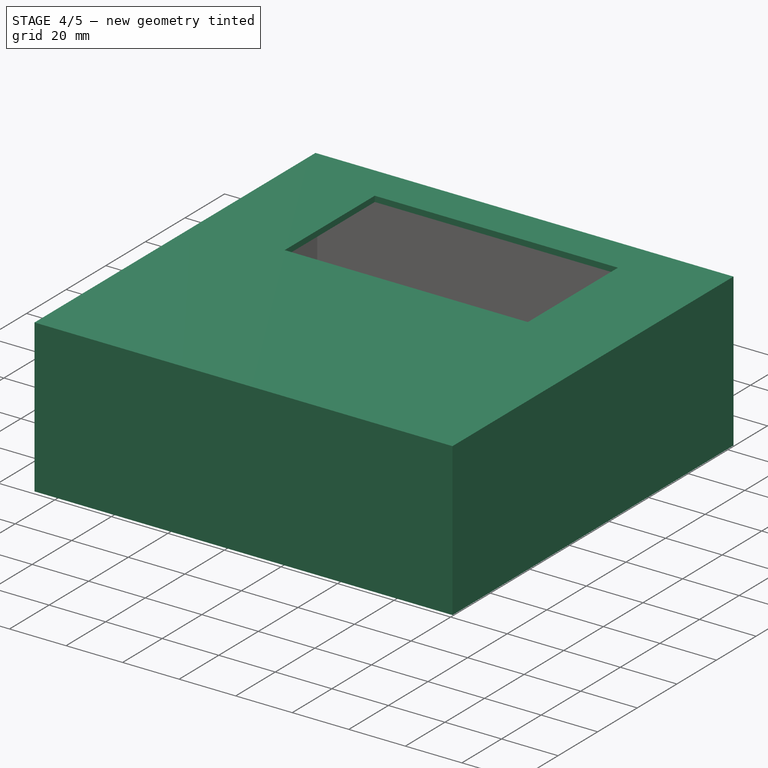
[diagram: stage 4 of 5 — iso view after this stage's code; geometry added in this stage tinted green]
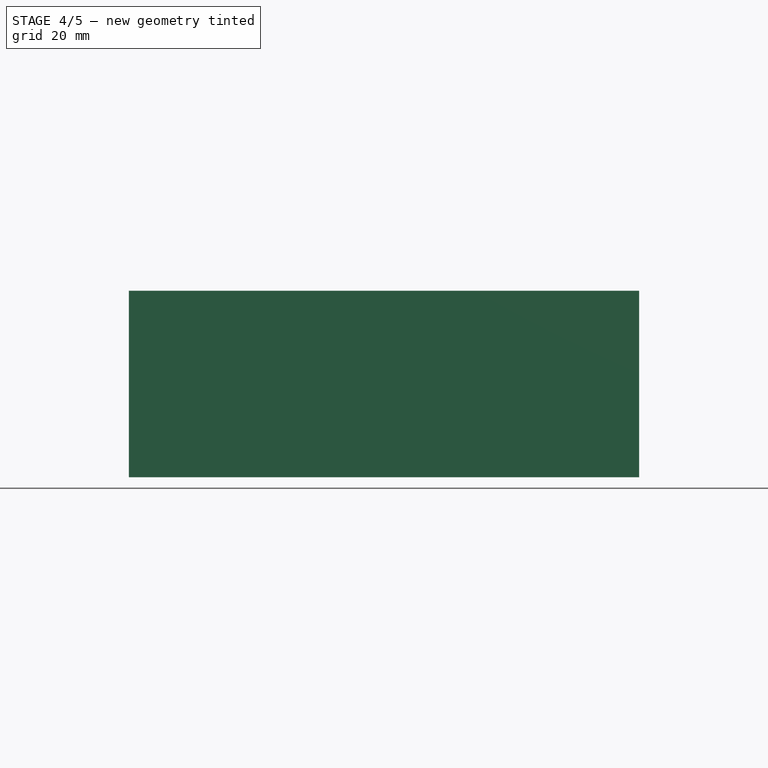
[diagram: stage 4 of 5 — front view after this stage's code; geometry added in this stage tinted green]
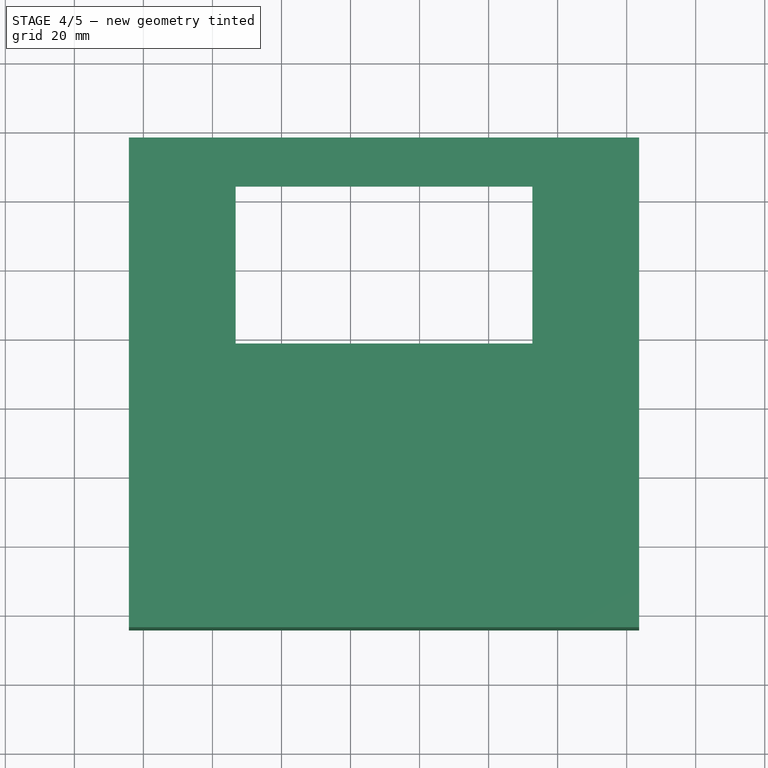
[diagram: stage 4 of 5 — top view after this stage's code; geometry added in this stage tinted green]
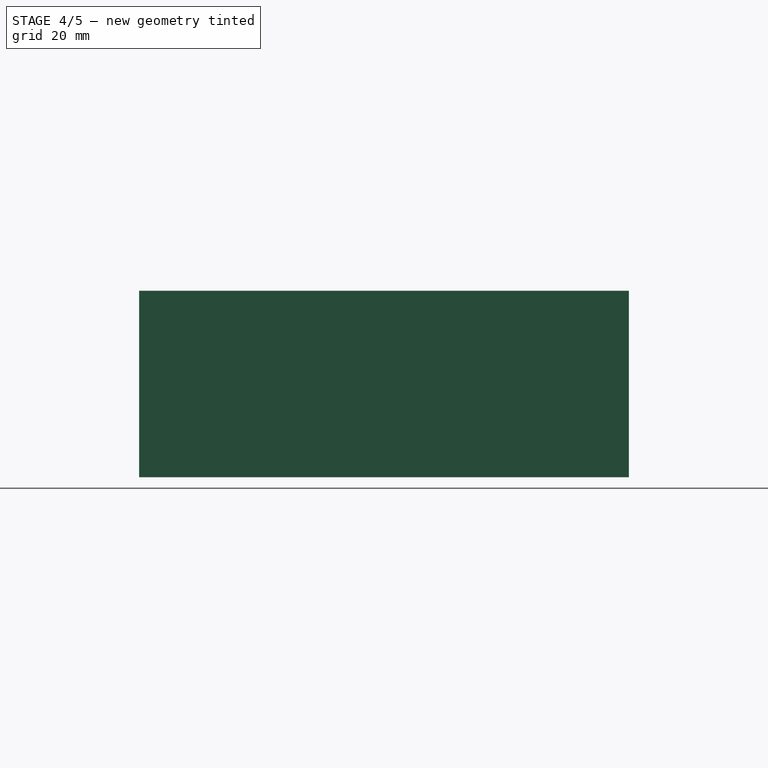
[diagram: stage 4 of 5 — right view after this stage's code; geometry added in this stage tinted green]
FEATURE [PartDesign::Fillet] Fillet
  Base = -> Pad009 [Edge245,Edge241,Edge239,Face5,Face76,Face96,Face85,Face92,Face10,Face12,Face14,Face15,Face13,Face7,Edge5,Face8,Edge113,Edge152,Edge155,Edge157,Edge163,Edge160,Edge211,Edge147,Edge149,Edge144,Face32,Face33,Face34,Face3,Face63,Face4,Face1,Face35,Face36]
  BaseFeature = -> Pad009
  Radius = 0.9
  Refine = true
  SupportTransform = false
  Suppressed = false
  UseAllEdges = false
FEATURE [PartDesign::Body] Body  label="inside_box_body"
  AllowCompound = false
  Group = -> [Sketch,Pad,Pad001,Pad002,Sketch002,Pocket,Sketch004,Pad005,Sketch005,Pocket002,Sketch006,Pocket003,Sketch010,Pocket006,Sketch011,Pad008,Sketch012,Pad009,Fillet]
  Origin = -> Origin001
  Tip = -> Fillet
FEATURE [App::Part] Part  label="inside_box"
  Group = -> [Body]
  Origin = -> Origin
FEATURE [PartDesign::ShapeBinder] ShapeBinder  label="top_face"
  Support = -> [Pad002]
  TraceSupport = false
FEATURE [PartDesign::SubShapeBinder] Binder002  label="screen_borders"
  BindCopyOnChange = 0
  BindMode = 0
  ClaimChildren = false
  Context = -> Part002 [Body002.Binder002.]
  Fuse = false
  MakeFace = true
  OffsetFill = false
  OffsetIntersection = false
  OffsetJoinType = 0
  OffsetOpenResult = false
  PartialLoad = false
  Refine = true
  Relative = true
  Support = -> [Part[Body.Sketch.Edge35,Body.Sketch.Edge36,Body.Sketch.Edge37,Body.Sketch.Edge34]]
  _Version = 2
FEATURE [Sketcher::SketchObject] Sketch013
  ArcFitTolerance = 1e-06
  AttachmentSupport = -> [ShapeBinder]
  ExternalGeometry = -> [ShapeBinder,Binder002]
  FullyConstrained = true
  MakeInternals = false
  MapMode = 5
  Placement = pos=(0,0,50) rot=(0,0,1;0rad)
  expr: Constraints[18] = <<config>>.slack
  expr: Constraints[19] = <<config>>.slack
  expr: Constraints[20] = <<config>>.slack
  expr: Constraints[21] = <<config>>.slack
  expr: Constraints[30] = <<config>>.thickness
  expr: Constraints[31] = <<config>>.thickness
  expr: Constraints[32] = <<config>>.thickness
  expr: Constraints[33] = <<config>>.thickness
  sketch-geometry (16):
    g0: LineSegment [constr] StartX=-2 StartY=-2 StartZ=0 EndX=141.4 EndY=-2 EndZ=0
    g1: LineSegment [constr] StartX=141.4 StartY=-2 StartZ=0 EndX=141.4 EndY=135.5 EndZ=0
    g2: LineSegment [constr] StartX=141.4 StartY=135.5 StartZ=0 EndX=-2 EndY=135.5 EndZ=0
    g3: LineSegment [constr] StartX=-2 StartY=135.5 StartZ=0 EndX=-2 EndY=-2 EndZ=0
    g4: LineSegment StartX=141.6 StartY=135.7 StartZ=0 EndX=-2.2 EndY=135.7 EndZ=0
    g5: LineSegment StartX=-2.2 StartY=135.7 StartZ=0 EndX=-2.2 EndY=-2.2 EndZ=0
    g6: LineSegment StartX=-2.2 StartY=-2.2 StartZ=0 EndX=141.6 EndY=-2.2 EndZ=0
    g7: LineSegment StartX=141.6 StartY=-2.2 StartZ=0 EndX=141.6 EndY=135.7 EndZ=0
    g8: LineSegment StartX=143.6 StartY=137.7 StartZ=0 EndX=-4.2 EndY=137.7 EndZ=0
    g9: LineSegment StartX=-4.2 StartY=137.7 StartZ=0 EndX=-4.2 EndY=-4.2 EndZ=0
    g10: LineSegment StartX=-4.2 StartY=-4.2 StartZ=0 EndX=143.6 EndY=-4.2 EndZ=0
    g11: LineSegment StartX=143.6 StartY=-4.2 StartZ=0 EndX=143.6 EndY=137.7 EndZ=0
    g12: LineSegment StartX=112.7 StartY=123.5 StartZ=0 EndX=26.7 EndY=123.5 EndZ=0
    g13: LineSegment StartX=26.7 StartY=123.5 StartZ=0 EndX=26.7 EndY=78 EndZ=0
    g14: LineSegment StartX=26.7 StartY=78 StartZ=0 EndX=112.7 EndY=78 EndZ=0
    g15: LineSegment StartX=112.7 StartY=78 StartZ=0 EndX=112.7 EndY=123.5 EndZ=0
  constraints (44):
    c: Coincident(g0,g1)
    c: Coincident(g1,g2)
    c: Coincident(g2,g3)
    c: Coincident(g3,g0)
    c: Horizontal(g0)
    c: Horizontal(g2)
    c: Vertical(g1)
    c: Vertical(g3)
    c: Coincident(g0,g-4)
    c: Coincident(g1,g-3)
    c: Coincident(g4,g5)
    c: Coincident(g5,g6)
    c: Coincident(g6,g7)
    c: Coincident(g7,g4)
    c: Horizontal(g4)
    c: Horizontal(g6)
    c: Vertical(g5)
    c: Vertical(g7)
    c: Distance(g0,g6) = 0.2
    c: Distance(g3,g5) = 0.2
    c: Distance(g7,g1) = 0.2
    c: Distance(g2,g4) = 0.2
    c: Coincident(g8,g9)
    c: Coincident(g9,g10)
    c: Coincident(g10,g11)
    c: Coincident(g11,g8)
    c: Horizontal(g8)
    c: Horizontal(g10)
    c: Vertical(g9)
    c: Vertical(g11)
    c: Distance(g7,g11) = 2
    c: Distance(g4,g8) = 2
    c: Distance(g6,g10) = 2
    c: Distance(g5,g9) = 2
    c: Coincident(g12,g13)
    c: Coincident(g13,g14)
    c: Coincident(g14,g15)
    c: Coincident(g15,g12)
    c: Horizontal(g12)
    c: Horizontal(g14)
    c: Vertical(g13)
    c: Vertical(g15)
    c: Coincident(g12,g-8)
    c: Coincident(g13,g-7)
FEATURE [PartDesign::Pad] Pad010  label="cover"
  Direction = (0,0,1)
  Length = 2
  Length2 = 10
  Profile = -> Sketch013 [Edge7,Edge6,Edge8,Edge5,Edge10,Edge9,Edge12,Edge11]
  ReferenceAxis = -> Sketch013 [N_Axis]
  Refine = true
  Suppressed = false
  Type = 0
  expr: Length = <<config>>.thickness
FEATURE [PartDesign::Pad] Pad011  label="walls_outside"
  BaseFeature = -> Pad010
  Direction = (0,0,1)
  Length = 52
  Length2 = 10
  Profile = -> Sketch013 [Edge1,Edge5,Edge6,Edge2,Edge7,Edge3,Edge4,Edge8]
  ReferenceAxis = -> Sketch013 [N_Axis]
  Refine = true
  Reversed = true
  Suppressed = false
  Type = 0
  expr: Length = <<config>>.inside_z + <<config>>.thickness
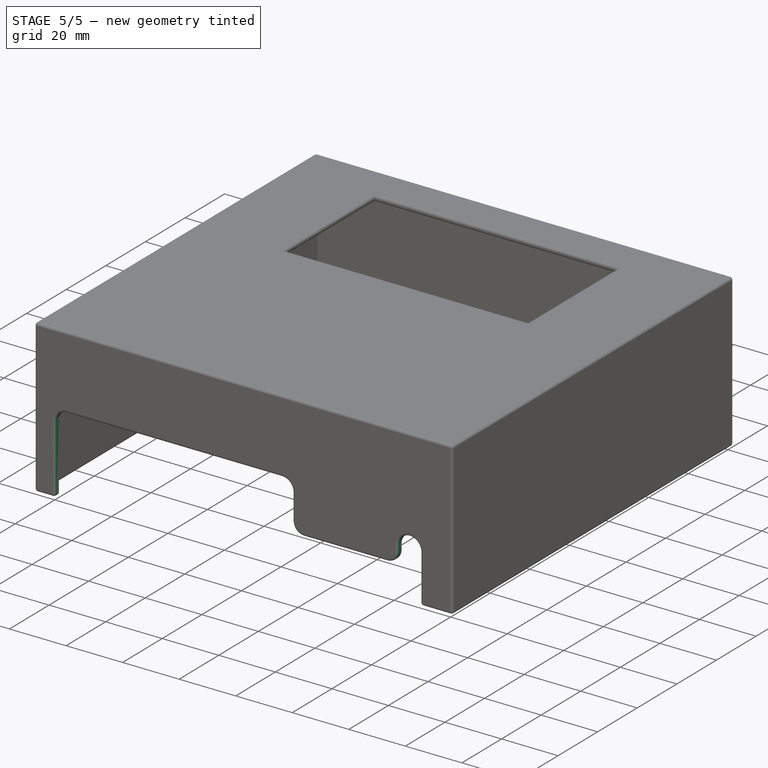
[diagram: stage 5 of 5 — iso view after this stage's code; geometry added in this stage tinted green]
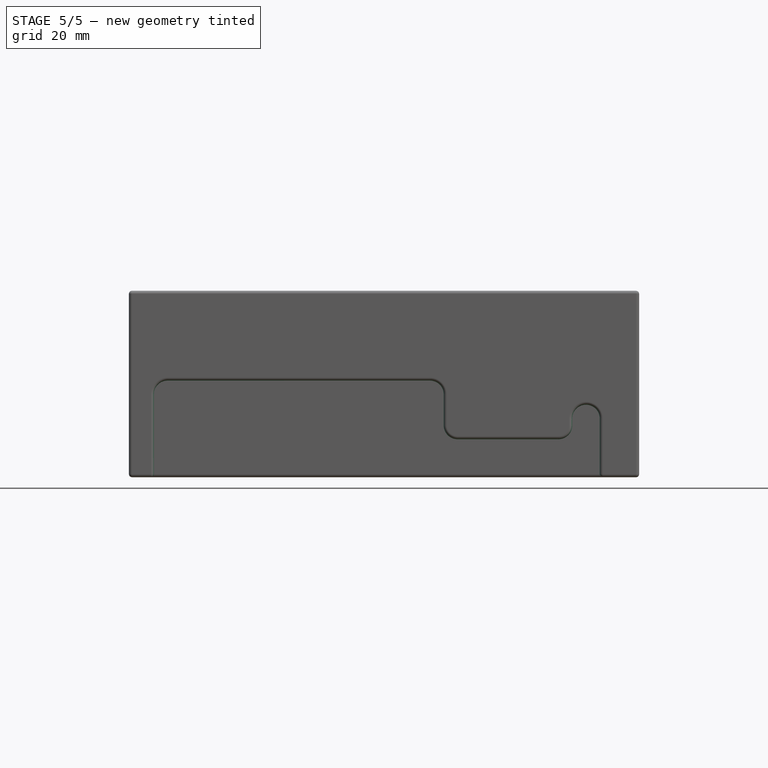
[diagram: stage 5 of 5 — front view after this stage's code; geometry added in this stage tinted green]
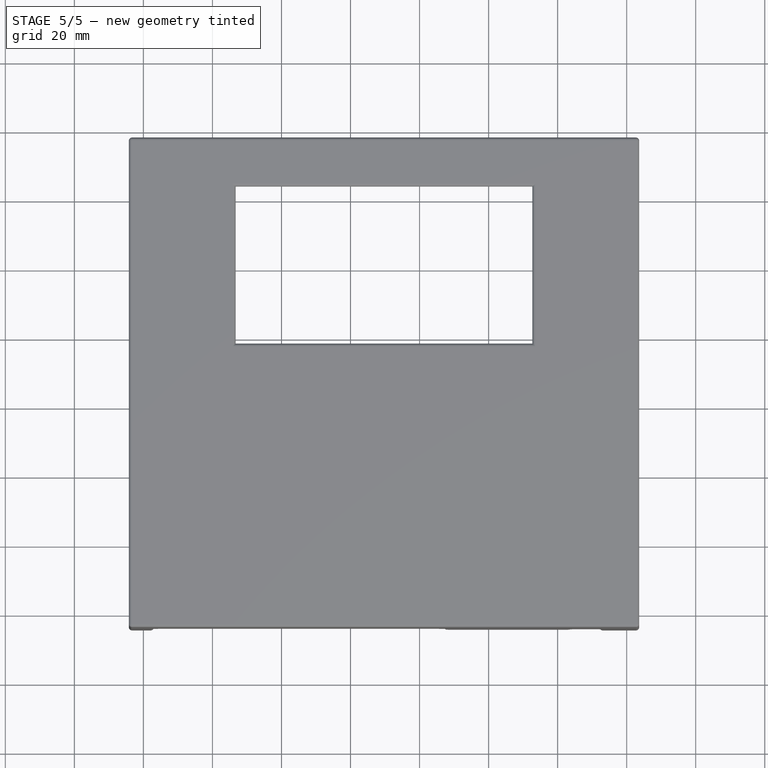
[diagram: stage 5 of 5 — top view after this stage's code; geometry added in this stage tinted green]
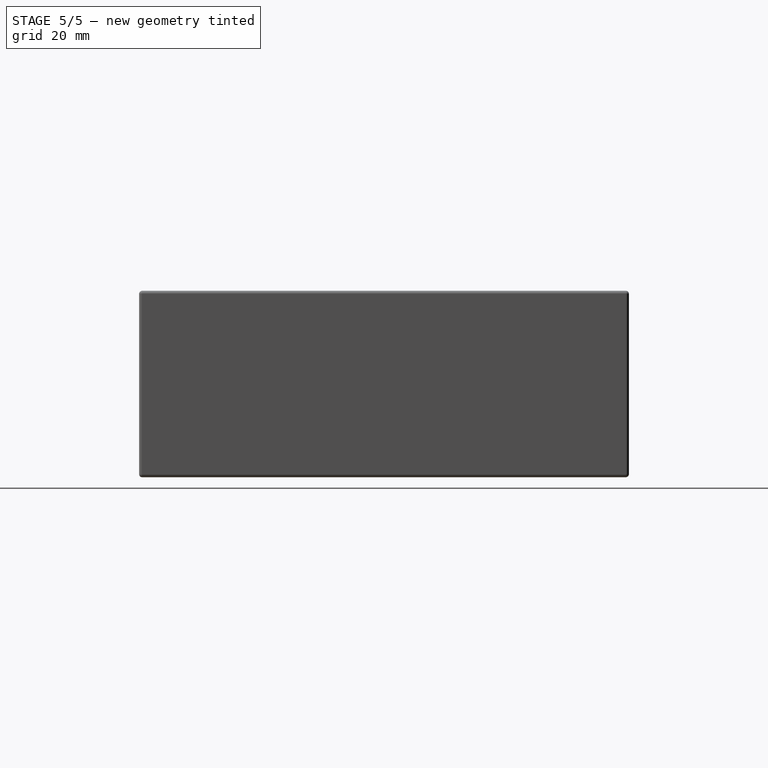
[diagram: stage 5 of 5 — right view after this stage's code; geometry added in this stage tinted green]
FEATURE [PartDesign::SubShapeBinder] Binder003  label="cable_borders"
  BindCopyOnChange = 0
  BindMode = 0
  ClaimChildren = false
  Context = -> Part002 [Body002.Binder003.]
  Fuse = false
  MakeFace = true
  OffsetFill = false
  OffsetIntersection = false
  OffsetJoinType = 0
  OffsetOpenResult = false
  PartialLoad = false
  Refine = true
  Relative = true
  Support = -> [Part[Body.Pad009.Edge15,Body.Pad009.Edge16,Body.Pad009.Edge17,Body.Pad009.Edge19,Body.Pad009.Edge20,Body.Pad009.Edge18]]
  _Version = 2
FEATURE [Sketcher::SketchObject] Sketch014
  ArcFitTolerance = 1e-06
  AttachmentSupport = -> [Pad011]
  ExternalGeometry = -> [Binder003,Pad011]
  FullyConstrained = true
  MakeInternals = false
  MapMode = 5
  Placement = pos=(0,-4.2,0) rot=(1,0,0;1.5708rad)
  expr: Constraints[34] = <<cables_sketch>>.Constraints.cable_diameter
  sketch-geometry (14):
    g0: LineSegment StartX=3 StartY=-2 StartZ=0 EndX=3 EndY=22 EndZ=0
    g1: LineSegment StartX=87 StartY=22 StartZ=0 EndX=87 EndY=13 EndZ=0
    g2: LineSegment StartX=91 StartY=9 StartZ=0 EndX=120.2 EndY=9 EndZ=0
    g3: LineSegment StartX=124.2 StartY=13 StartZ=0 EndX=124.2 EndY=15 EndZ=0
    g4: ArcOfCircle CenterX=128.2 CenterY=15 CenterZ=0 NormalX=0 NormalY=0 NormalZ=1 AngleXU=0 Radius=4 StartAngle=0 EndAngle=3.14159
    g5: LineSegment StartX=132.2 StartY=15 StartZ=0 EndX=132.2 EndY=-2 EndZ=0
    g6: LineSegment StartX=132.2 StartY=-2 StartZ=0 EndX=3 EndY=-2 EndZ=0
    g7: LineSegment StartX=7 StartY=26 StartZ=0 EndX=83 EndY=26 EndZ=0
    g8: ArcOfCircle CenterX=7 CenterY=22 CenterZ=0 NormalX=0 NormalY=0 NormalZ=1 AngleXU=0 Radius=4 StartAngle=1.5708 EndAngle=3.14159
    g9: ArcOfCircle CenterX=83 CenterY=22 CenterZ=0 NormalX=0 NormalY=0 NormalZ=1 AngleXU=0 Radius=4 StartAngle=1e-16 EndAngle=1.5708
    g10: ArcOfCircle CenterX=120.2 CenterY=13 CenterZ=0 NormalX=0 NormalY=0 NormalZ=1 AngleXU=0 Radius=4 StartAngle=4.71239 EndAngle=6.28319
    g11: GeomPoint [constr] X=124.2 Y=9 Z=0
    g12: ArcOfCircle CenterX=91 CenterY=13 CenterZ=0 NormalX=0 NormalY=0 NormalZ=1 AngleXU=0 Radius=4 StartAngle=3.14159 EndAngle=4.71239
    g13: GeomPoint [constr] X=87 Y=9 Z=0
  constraints (36):
    c: PointOnObject(g0,g-9)
    c: Vertical(g0)
    c: Horizontal(g2)
    c: PointOnObject(g3,g-7)
    c: Vertical(g3)
    c: Tangent(g3,g4) = 1.5708
    c: Coincident(g4,g5)
    c: PointOnObject(g5,g-9)
    c: Vertical(g5)
    c: Coincident(g5,g6)
    c: Coincident(g6,g0)
    c: Tangent(g7,g-5) = 1.5708
    c: Horizontal(g7)
    c: Horizontal(g0,g-3)
    c: Vertical(g1)
    c: Horizontal(g-5,g1)
    c: Tangent(g2,g-6)
    c: Coincident(g8,g-3)
    c: Coincident(g7,g8)
    c: Coincident(g8,g0)
    c: Coincident(g9,g-5)
    c: Coincident(g7,g9)
    c: Coincident(g9,g1)
    c: Vertical(g8,g7)
    c: Coincident(g4,g-7)
    c: PointOnObject(g11,g2)
    c: PointOnObject(g11,g3)
    c: Tangent(g2,g10) = -1.5708
    c: Tangent(g3,g10) = -1.5708
    c: PointOnObject(g13,g2)
    c: PointOnObject(g13,g1)
    c: Tangent(g2,g12) = -1.5708
    c: Tangent(g1,g12) = -1.5708
    c: Equal(g10,g12)
    c: Diameter(g10) = 8
    c: Horizontal(g4,g4)
FEATURE [PartDesign::Pocket] Pocket007  label="cable_holes_outside"
  BaseFeature = -> Pad011
  Direction = (0,1,-2e-16)
  Length = 5
  Length2 = 5
  Profile = -> Sketch014
  ReferenceAxis = -> Sketch014 [N_Axis]
  Refine = true
  Suppressed = false
  Type = 2
FEATURE [PartDesign::SubShapeBinder] Binder004
  BindCopyOnChange = 0
  BindMode = 0
  ClaimChildren = false
  Context = -> Part002 [Body002.Binder004.]
  Fuse = false
  MakeFace = true
  OffsetFill = false
  OffsetIntersection = false
  OffsetJoinType = 0
  OffsetOpenResult = false
  PartialLoad = false
  Refine = true
  Relative = true
  Support = -> [Part[Body.Pad009.Edge6,Body.Pad009.Edge7,Body.Pad009.Edge5,Body.Pad009.Edge8]]
  _Version = 2
FEATURE [Sketcher::SketchObject] Sketch015
  ArcFitTolerance = 1e-06
  AttachmentSupport = -> [Pad011]
  ExternalGeometry = -> [Binder004]
  FullyConstrained = true
  MakeInternals = false
  MapMode = 5
  Placement = pos=(-4.2,0,0) rot=(0.57735,-0.57735,-0.57735;2.0944rad)
  sketch-geometry (4):
    g0: ArcOfCircle CenterX=-120.1 CenterY=20 CenterZ=0 NormalX=0 NormalY=0 NormalZ=1 AngleXU=0 Radius=3.5 StartAngle=1.5708 EndAngle=4.71239
    g1: ArcOfCircle CenterX=-114.1 CenterY=20 CenterZ=0 NormalX=0 NormalY=0 NormalZ=1 AngleXU=0 Radius=3.5 StartAngle=4.71239 EndAngle=7.85398
    g2: LineSegment StartX=-120.1 StartY=23.5 StartZ=0 EndX=-114.1 EndY=23.5 EndZ=0
    g3: LineSegment StartX=-120.1 StartY=16.5 StartZ=0 EndX=-114.1 EndY=16.5 EndZ=0
  constraints (7):
    c: Tangent(g0,g2) = 1.5708
    c: Tangent(g0,g3) = -1.5708
    c: Tangent(g1,g2) = 1.5708
    c: Tangent(g1,g3) = -1.5708
    c: Coincident(g0,g-4)
    c: Coincident(g1,g-6)
    c: Tangent(g2,g-5)
FEATURE [PartDesign::Pocket] Pocket008  label="usb_hole_outside"
  BaseFeature = -> Pocket007
  Direction = (1,0,0)
  Length = 5
  Length2 = 5
  Profile = -> Sketch015
  ReferenceAxis = -> Sketch015 [N_Axis]
  Refine = true
  Suppressed = false
  Type = 2
FEATURE [PartDesign::Fillet] Fillet002
  Base = -> Pocket008 [Face12,Face3,Face2,Face11,Edge11,Edge7,Face1,Face10,Edge50,Edge52,Edge51,Edge49,Edge75,Edge73,Edge76,Edge74]
  BaseFeature = -> Pocket008
  Radius = 0.9
  Refine = true
  SupportTransform = false
  Suppressed = false
  UseAllEdges = false
FEATURE [PartDesign::Body] Body002  label="outside_box_body"
  AllowCompound = false
  Group = -> [ShapeBinder,Binder002,Sketch013,Pad010,Pad011,Binder003,Sketch014,Pocket007,Binder004,Sketch015,Pocket008,Fillet002]
  Origin = -> Origin005
  Tip = -> Fillet002
FEATURE [App::Part] Part002  label="outside_box"
  Group = -> [Body002]
  Origin = -> Origin004
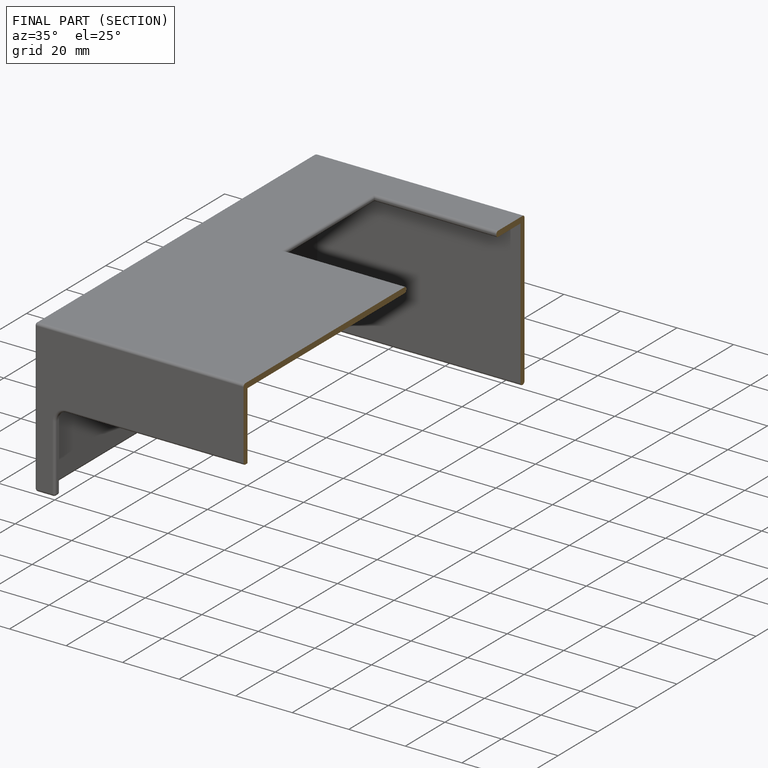
[diagram: finished part — half-section view (interior)]
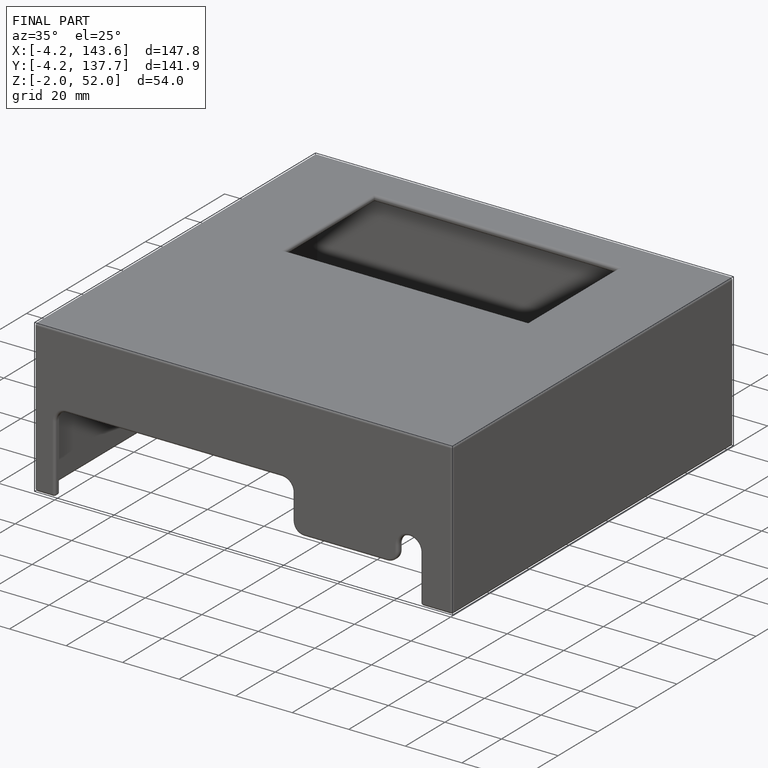
[diagram: finished part — iso view with bounding-box wireframe]
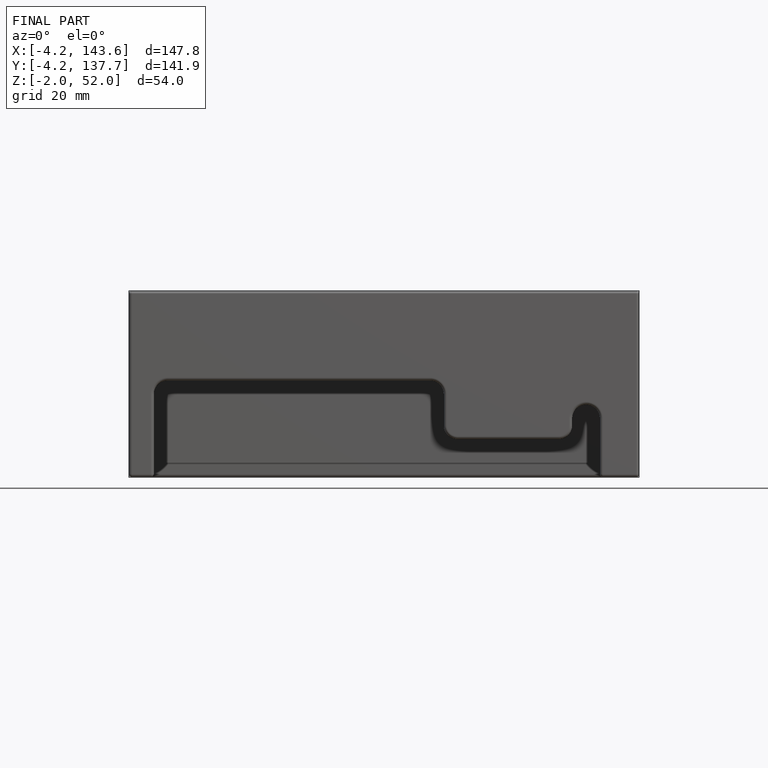
[diagram: finished part — front view with bounding-box wireframe]
